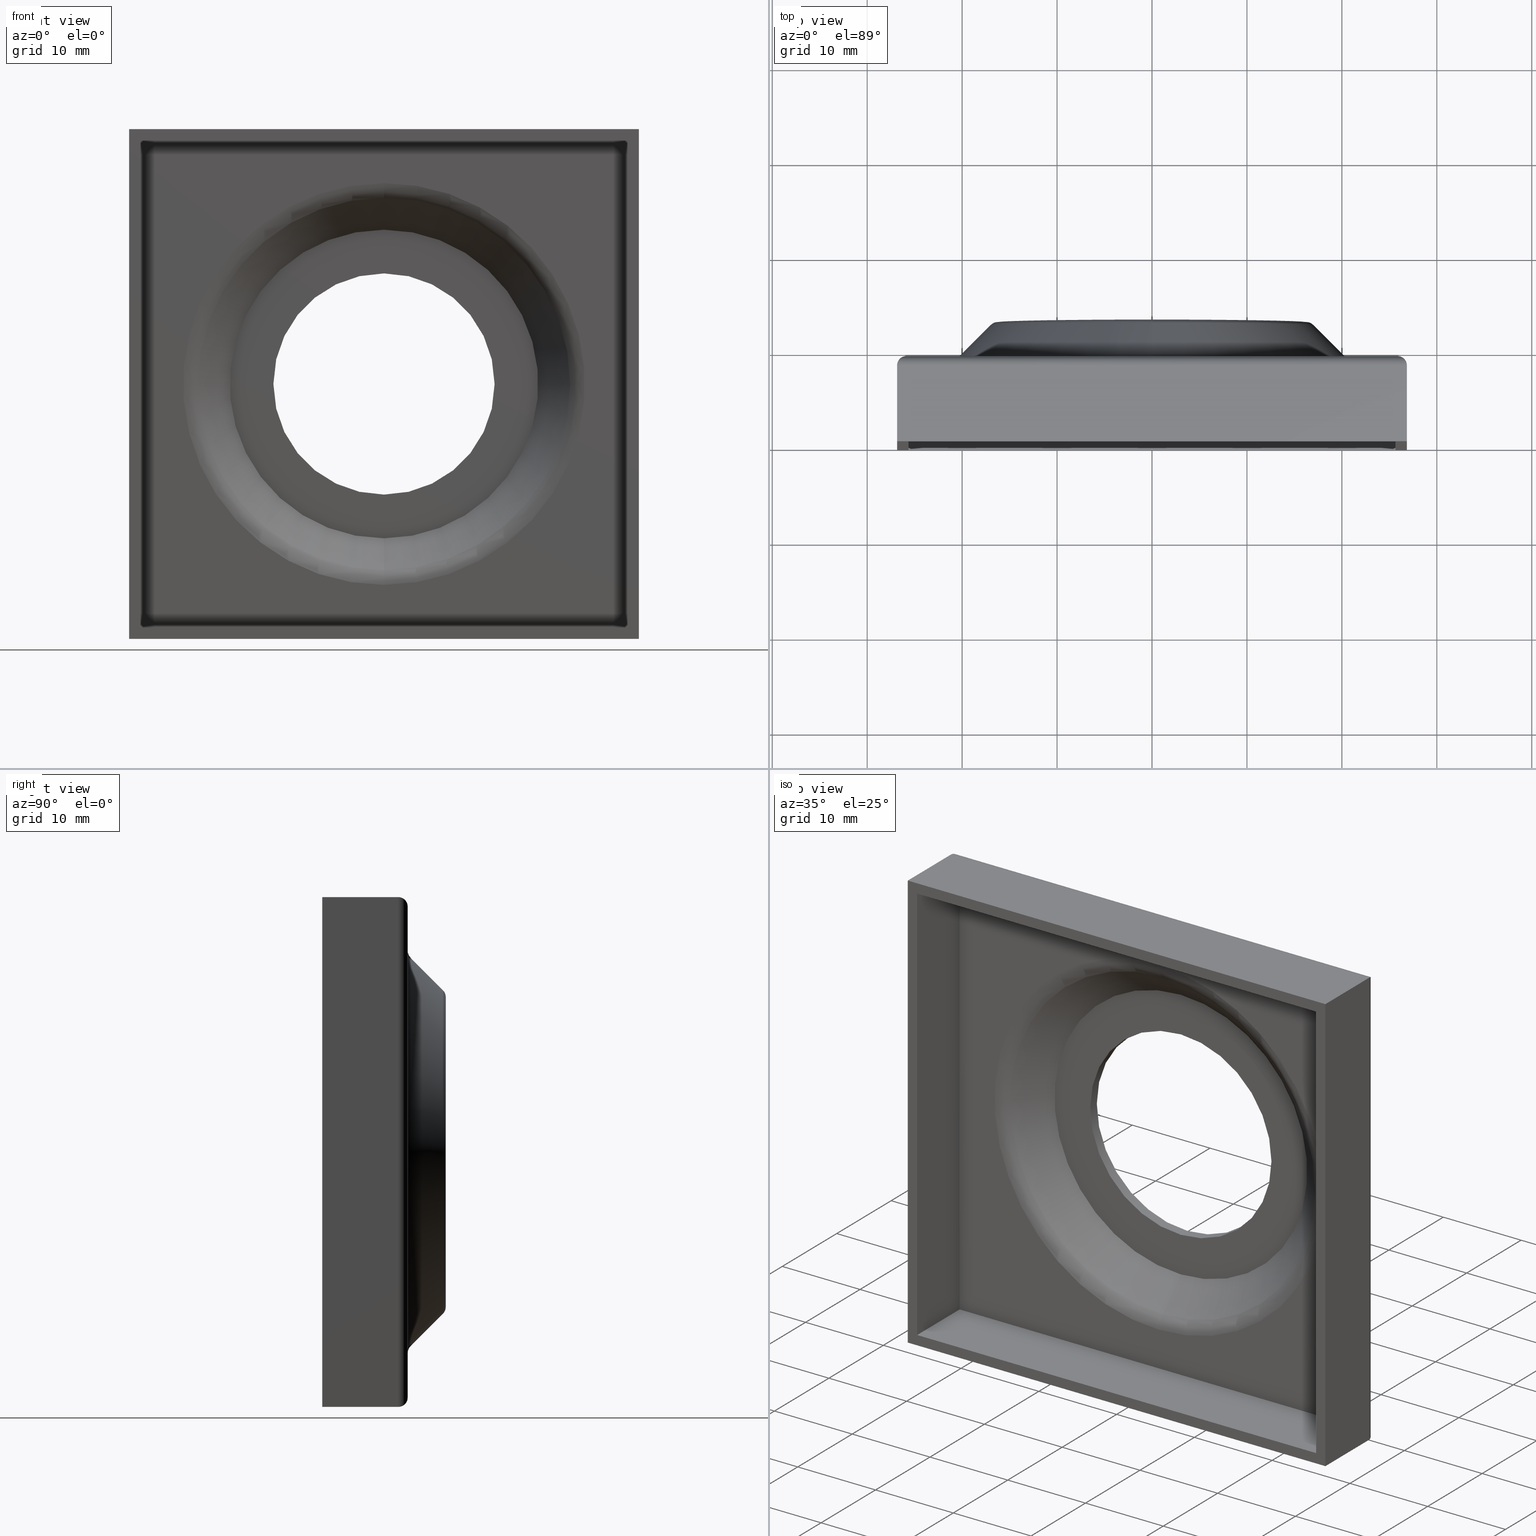
[diagram: canonical four-view strip — front | top / right | iso, engineering-drawing reading convention]
A machine part, canonical four-view strip (front | top / right | iso — engineering-drawing reading convention). The complete STEP part file that produces these views, byte-faithful:
ISO-10303-21;
HEADER;
FILE_DESCRIPTION (( 'STEP AP214' ),
    '1' );
FILE_NAME ('���. KRT111.STEP',
    '2014-05-26T18:04:52',
    ( '' ),
    ( '' ),
    'SwSTEP 2.0',
    'SolidWorks 2014',
    '' );
FILE_SCHEMA (( 'AUTOMOTIVE_DESIGN' ));
ENDSEC;

DATA;
#1 = CARTESIAN_POINT ( 'NONE',  ( 0.0000000000000000000, 0.0000000000000000000, 0.0000000000000000000 ) ) ;
#2 = CARTESIAN_POINT ( 'NONE',  ( 2.591868639563121200E-015, 9.999999999999998200, 21.16421356237309200 ) ) ;
#3 = ORIENTED_EDGE ( 'NONE', *, *, #544, .F. ) ;
#4 = CIRCLE ( 'NONE', #724, 16.33578643762689000 ) ;
#5 = VERTEX_POINT ( 'NONE', #638 ) ;
#6 = DIRECTION ( 'NONE',  ( -1.000000000000000000, 0.0000000000000000000, -0.0000000000000000000 ) ) ;
#7 = EDGE_CURVE ( 'NONE', #741, #245, #763, .T. ) ;
#8 = VECTOR ( 'NONE', #584, 1000.000000000000000 ) ;
#9 = DIRECTION ( 'NONE',  ( 0.0000000000000000000, 0.0000000000000000000, -1.000000000000000000 ) ) ;
#10 = DIRECTION ( 'NONE',  ( -0.0000000000000000000, 1.000000000000000000, -0.0000000000000000000 ) ) ;
#11 = CARTESIAN_POINT ( 'NONE',  ( 25.64999999999999900, 7.799999999999999800, 25.64999999999999900 ) ) ;
#12 = PRESENTATION_LAYER_ASSIGNMENT (  '', '', ( #324 ) ) ;
#13 = ORIENTED_EDGE ( 'NONE', *, *, #40, .F. ) ;
#14 = CARTESIAN_POINT ( 'NONE',  ( 0.0000000000000000000, 7.799999999999998900, 0.0000000000000000000 ) ) ;
#15 = ORIENTED_EDGE ( 'NONE', *, *, #58, .T. ) ;
#16 = DIRECTION ( 'NONE',  ( 0.0000000000000000000, 0.0000000000000000000, -1.000000000000000000 ) ) ;
#17 = EDGE_CURVE ( 'NONE', #715, #272, #4, .T. ) ;
#18 = CYLINDRICAL_SURFACE ( 'NONE', #553, 1.000000000000000900 ) ;
#19 = LINE ( 'NONE', #405, #180 ) ;
#20 = LINE ( 'NONE', #625, #188 ) ;
#21 = SURFACE_STYLE_USAGE ( .BOTH. , #409 ) ;
#22 = CARTESIAN_POINT ( 'NONE',  ( 0.0000000000000000000, 13.00000000000000000, 0.0000000000000000000 ) ) ;
#23 = CARTESIAN_POINT ( 'NONE',  ( 25.64999999999999900, 7.799999999999999800, -25.65000000000000600 ) ) ;
#24 = ORIENTED_EDGE ( 'NONE', *, *, #241, .F. ) ;
#25 = CIRCLE ( 'NONE', #149, 1.000000000000000900 ) ;
#26 = CARTESIAN_POINT ( 'NONE',  ( 0.0000000000000000000, 11.79999999999999900, 0.0000000000000000000 ) ) ;
#27 = VERTEX_POINT ( 'NONE', #610 ) ;
#28 = DIRECTION ( 'NONE',  ( -1.000000000000000000, -0.0000000000000000000, -0.0000000000000000000 ) ) ;
#29 = CARTESIAN_POINT ( 'NONE',  ( 0.0000000000000000000, 8.444365081389591400, 0.0000000000000000000 ) ) ;
#30 = AXIS2_PLACEMENT_3D ( 'NONE', #282, #721, #341 ) ;
#31 = EDGE_LOOP ( 'NONE', ( #214, #522, #743, #564 ) ) ;
#32 = DIRECTION ( 'NONE',  ( 0.0000000000000000000, 0.0000000000000000000, 1.000000000000000000 ) ) ;
#33 = CIRCLE ( 'NONE', #37, 2.200000000000000600 ) ;
#34 = LINE ( 'NONE', #171, #745 ) ;
#35 = CARTESIAN_POINT ( 'NONE',  ( -26.85000000000000500, 8.000000000000000000, 26.84999999999999800 ) ) ;
#36 = ADVANCED_FACE ( 'NONE', ( #204, #649 ), #302, .T. ) ;
#37 = AXIS2_PLACEMENT_3D ( 'NONE', #602, #600, #545 ) ;
#38 = APPLICATION_CONTEXT ( 'automotive_design' ) ;
#39 = ORIENTED_EDGE ( 'NONE', *, *, #317, .T. ) ;
#40 = EDGE_CURVE ( 'NONE', #351, #280, #647, .T. ) ;
#41 = DIRECTION ( 'NONE',  ( 0.0000000000000000000, 0.0000000000000000000, -1.000000000000000000 ) ) ;
#42 = VERTEX_POINT ( 'NONE', #105 ) ;
#43 = EDGE_CURVE ( 'NONE', #233, #648, #445, .T. ) ;
#44 = ORIENTED_EDGE ( 'NONE', *, *, #352, .T. ) ;
#45 = SURFACE_STYLE_FILL_AREA ( #491 ) ;
#46 = DIRECTION ( 'NONE',  ( 0.0000000000000000000, 0.0000000000000000000, 1.000000000000000000 ) ) ;
#47 = CIRCLE ( 'NONE', #731, 19.60857864376269400 ) ;
#48 = DIRECTION ( 'NONE',  ( 0.0000000000000000000, 0.0000000000000000000, 1.000000000000000000 ) ) ;
#49 = AXIS2_PLACEMENT_3D ( 'NONE', #323, #826, #771 ) ;
#50 = ADVANCED_FACE ( 'NONE', ( #222, #142 ), #362, .F. ) ;
#51 = EDGE_CURVE ( 'NONE', #716, #61, #541, .T. ) ;
#52 = CARTESIAN_POINT ( 'NONE',  ( 0.0000000000000000000, 0.0000000000000000000, 11.65000000000000000 ) ) ;
#53 = ORIENTED_EDGE ( 'NONE', *, *, #297, .T. ) ;
#54 = DIRECTION ( 'NONE',  ( -1.000000000000000000, 0.0000000000000000000, 0.0000000000000000000 ) ) ;
#55 = ADVANCED_FACE ( 'NONE', ( #586 ), #438, .T. ) ;
#56 = VECTOR ( 'NONE', #759, 1000.000000000000000 ) ;
#57 = CARTESIAN_POINT ( 'NONE',  ( 0.0000000000000000000, -0.0000000000000000000, -25.65000000000000600 ) ) ;
#58 = EDGE_CURVE ( 'NONE', #235, #5, #166, .T. ) ;
#59 = ORIENTED_EDGE ( 'NONE', *, *, #170, .T. ) ;
#60 = ORIENTED_EDGE ( 'NONE', *, *, #384, .F. ) ;
#61 = VERTEX_POINT ( 'NONE', #696 ) ;
#62 = AXIS2_PLACEMENT_3D ( 'NONE', #93, #415, #284 ) ;
#63 = FACE_OUTER_BOUND ( 'NONE', #443, .T. ) ;
#64 = DIRECTION ( 'NONE',  ( 1.000000000000000000, 0.0000000000000000000, -1.224646799147353200E-016 ) ) ;
#65 = CIRCLE ( 'NONE', #792, 21.16421356237309200 ) ;
#66 = EDGE_CURVE ( 'NONE', #5, #821, #404, .T. ) ;
#67 = CARTESIAN_POINT ( 'NONE',  ( -25.85000000000000500, 9.000000000000000000, -25.85000000000000500 ) ) ;
#68 = VERTEX_POINT ( 'NONE', #179 ) ;
#69 = CARTESIAN_POINT ( 'NONE',  ( 25.64999999999999900, 0.0000000000000000000, 0.0000000000000000000 ) ) ;
#70 = ORIENTED_EDGE ( 'NONE', *, *, #544, .T. ) ;
#71 = LINE ( 'NONE', #219, #567 ) ;
#72 = AXIS2_PLACEMENT_3D ( 'NONE', #226, #350, #799 ) ;
#73 = CARTESIAN_POINT ( 'NONE',  ( 0.0000000000000000000, 13.00000000000000000, 0.0000000000000000000 ) ) ;
#74 = ORIENTED_EDGE ( 'NONE', *, *, #580, .T. ) ;
#75 = AXIS2_PLACEMENT_3D ( 'NONE', #213, #347, #787 ) ;
#76 = ORIENTED_EDGE ( 'NONE', *, *, #430, .F. ) ;
#77 = ORIENTED_EDGE ( 'NONE', *, *, #655, .F. ) ;
#78 = VERTEX_POINT ( 'NONE', #566 ) ;
#79 = CARTESIAN_POINT ( 'NONE',  ( 25.84999999999999800, 9.000000000000000000, -25.85000000000000500 ) ) ;
#80 = EDGE_CURVE ( 'NONE', #373, #410, #128, .T. ) ;
#81 = EDGE_CURVE ( 'NONE', #716, #42, #757, .T. ) ;
#82 = FACE_OUTER_BOUND ( 'NONE', #122, .T. ) ;
#83 = DIRECTION ( 'NONE',  ( 0.0000000000000000000, 0.0000000000000000000, 1.000000000000000000 ) ) ;
#84 = EDGE_LOOP ( 'NONE', ( #695, #303, #162, #683 ) ) ;
#85 = CARTESIAN_POINT ( 'NONE',  ( 0.0000000000000000000, 0.0000000000000000000, 0.0000000000000000000 ) ) ;
#86 = ORIENTED_EDGE ( 'NONE', *, *, #779, .F. ) ;
#87 = CARTESIAN_POINT ( 'NONE',  ( 0.0000000000000000000, 9.000000000000000000, 0.0000000000000000000 ) ) ;
#88 = ADVANCED_BREP_SHAPE_REPRESENTATION ( '�. KRT111', ( #455, #754 ), #311 ) ;
#89 = CARTESIAN_POINT ( 'NONE',  ( 0.0000000000000000000, 7.799999999999998900, -21.16421356237309200 ) ) ;
#90 = EDGE_CURVE ( 'NONE', #229, #821, #537, .T. ) ;
#91 = MECHANICAL_DESIGN_GEOMETRIC_PRESENTATION_REPRESENTATION (  '', ( #589 ), #459 ) ;
#92 = CIRCLE ( 'NONE', #119, 11.65000000000000000 ) ;
#93 = CARTESIAN_POINT ( 'NONE',  ( -26.85000000000000500, 9.000000000000000000, 26.84999999999999800 ) ) ;
#94 = CARTESIAN_POINT ( 'NONE',  ( 25.64999999999999900, 7.799999999999999800, 26.84999999999999800 ) ) ;
#95 = CARTESIAN_POINT ( 'NONE',  ( 0.0000000000000000000, 9.999999999999998200, 0.0000000000000000000 ) ) ;
#96 = AXIS2_PLACEMENT_3D ( 'NONE', #612, #432, #46 ) ;
#97 = ORIENTED_EDGE ( 'NONE', *, *, #570, .F. ) ;
#98 = CARTESIAN_POINT ( 'NONE',  ( 26.84999999999999800, 8.000000000000000000, 26.84999999999999800 ) ) ;
#99 = EDGE_LOOP ( 'NONE', ( #97, #112, #273, #402 ) ) ;
#100 = CARTESIAN_POINT ( 'NONE',  ( -26.85000000000000500, 9.000000000000000000, 26.84999999999999800 ) ) ;
#101 = ORIENTED_EDGE ( 'NONE', *, *, #636, .F. ) ;
#102 = PRESENTATION_STYLE_ASSIGNMENT (( #806 ) ) ;
#103 = DIRECTION ( 'NONE',  ( -1.000000000000000000, 0.0000000000000000000, -0.0000000000000000000 ) ) ;
#104 = VECTOR ( 'NONE', #120, 1000.000000000000000 ) ;
#105 = CARTESIAN_POINT ( 'NONE',  ( -2.505273033939572200E-015, 9.292893218813450300, -20.45710678118655000 ) ) ;
#106 = AXIS2_PLACEMENT_3D ( 'NONE', #596, #659, #794 ) ;
#107 = PLANE ( 'NONE',  #406 ) ;
#108 = PRODUCT_DEFINITION_SHAPE ( 'NONE', 'NONE',  #321 ) ;
#109 = EDGE_CURVE ( 'NONE', #821, #648, #209, .T. ) ;
#110 = DIRECTION ( 'NONE',  ( 0.0000000000000000000, 0.0000000000000000000, -1.000000000000000000 ) ) ;
#111 = CARTESIAN_POINT ( 'NONE',  ( 0.0000000000000000000, 12.70710678118655100, 0.0000000000000000000 ) ) ;
#112 = ORIENTED_EDGE ( 'NONE', *, *, #786, .T. ) ;
#113 = ADVANCED_FACE ( 'NONE', ( #199, #137 ), #503, .F. ) ;
#114 = DIRECTION ( 'NONE',  ( -0.0000000000000000000, -1.000000000000000000, 0.0000000000000000000 ) ) ;
#115 = DIRECTION ( 'NONE',  ( -0.0000000000000000000, 1.000000000000000000, -0.0000000000000000000 ) ) ;
#116 = CYLINDRICAL_SURFACE ( 'NONE', #614, 1.000000000000000900 ) ;
#117 = FACE_OUTER_BOUND ( 'NONE', #594, .T. ) ;
#118 = VECTOR ( 'NONE', #157, 1000.000000000000000 ) ;
#119 = AXIS2_PLACEMENT_3D ( 'NONE', #653, #148, #338 ) ;
#120 = DIRECTION ( 'NONE',  ( -0.0000000000000000000, -1.000000000000000000, -0.0000000000000000000 ) ) ;
#121 = VERTEX_POINT ( 'NONE', #568 ) ;
#122 = EDGE_LOOP ( 'NONE', ( #13, #418, #146, #290 ) ) ;
#123 = AXIS2_PLACEMENT_3D ( 'NONE', #699, #28, #230 ) ;
#124 = EDGE_CURVE ( 'NONE', #482, #143, #428, .T. ) ;
#125 = ORIENTED_EDGE ( 'NONE', *, *, #430, .T. ) ;
#126 = CONICAL_SURFACE ( 'NONE', #220, 20.75000000000000000, 0.7853981633974500600 ) ;
#127 = CARTESIAN_POINT ( 'NONE',  ( -26.85000000000000500, 8.000000000000000000, -26.85000000000000500 ) ) ;
#128 = LINE ( 'NONE', #57, #154 ) ;
#129 = EDGE_CURVE ( 'NONE', #68, #824, #20, .T. ) ;
#130 = CARTESIAN_POINT ( 'NONE',  ( 2.000556857239451600E-015, 12.00000000000000000, -16.33578643762689000 ) ) ;
#131 = CARTESIAN_POINT ( 'NONE',  ( -26.43578643762691300, 9.000000000000000000, -26.43578643762691300 ) ) ;
#132 = ORIENTED_EDGE ( 'NONE', *, *, #655, .T. ) ;
#133 = AXIS2_PLACEMENT_3D ( 'NONE', #320, #760, #767 ) ;
#134 = CIRCLE ( 'NONE', #167, 11.65000000000000000 ) ;
#135 = VECTOR ( 'NONE', #442, 1000.000000000000000 ) ;
#136 = PRESENTATION_STYLE_ASSIGNMENT (( #21 ) ) ;
#137 = FACE_OUTER_BOUND ( 'NONE', #185, .T. ) ;
#138 = EDGE_CURVE ( 'NONE', #704, #482, #33, .T. ) ;
#139 = PRODUCT ( '���. KRT111', '���. KRT111', '', ( #287 ) ) ;
#140 = CARTESIAN_POINT ( 'NONE',  ( 26.84999999999999800, 0.0000000000000000000, 26.84999999999999800 ) ) ;
#141 = ORIENTED_EDGE ( 'NONE', *, *, #7, .T. ) ;
#142 = FACE_OUTER_BOUND ( 'NONE', #808, .T. ) ;
#143 = VERTEX_POINT ( 'NONE', #725 ) ;
#144 = ORIENTED_EDGE ( 'NONE', *, *, #58, .F. ) ;
#145 = EDGE_CURVE ( 'NONE', #444, #68, #812, .T. ) ;
#146 = ORIENTED_EDGE ( 'NONE', *, *, #90, .F. ) ;
#147 = CIRCLE ( 'NONE', #565, 16.25294372515227800 ) ;
#148 = DIRECTION ( 'NONE',  ( 0.0000000000000000000, 1.000000000000000000, 0.0000000000000000000 ) ) ;
#149 = AXIS2_PLACEMENT_3D ( 'NONE', #130, #577, #194 ) ;
#150 = FILL_AREA_STYLE_COLOUR ( '', #376 ) ;
#151 = ORIENTED_EDGE ( 'NONE', *, *, #241, .T. ) ;
#152 = CARTESIAN_POINT ( 'NONE',  ( -26.85000000000000500, 8.000000000000000000, 26.84999999999999800 ) ) ;
#153 = FACE_OUTER_BOUND ( 'NONE', #365, .T. ) ;
#154 = VECTOR ( 'NONE', #54, 1000.000000000000000 ) ;
#155 = VECTOR ( 'NONE', #114, 1000.000000000000000 ) ;
#156 = CARTESIAN_POINT ( 'NONE',  ( -26.85000000000000500, 7.799999999999999800, 25.64999999999999900 ) ) ;
#157 = DIRECTION ( 'NONE',  ( 0.0000000000000000000, 0.0000000000000000000, 1.000000000000000000 ) ) ;
#158 = ORIENTED_EDGE ( 'NONE', *, *, #779, .T. ) ;
#159 = CARTESIAN_POINT ( 'NONE',  ( -26.85000000000000500, 0.0000000000000000000, -26.85000000000000500 ) ) ;
#160 = AXIS2_PLACEMENT_3D ( 'NONE', #469, #783, #532 ) ;
#161 = EDGE_LOOP ( 'NONE', ( #132, #158, #24, #486 ) ) ;
#162 = ORIENTED_EDGE ( 'NONE', *, *, #742, .F. ) ;
#163 = DIRECTION ( 'NONE',  ( 0.0000000000000000000, 0.0000000000000000000, 1.000000000000000000 ) ) ;
#164 = CARTESIAN_POINT ( 'NONE',  ( 2.591868639563121200E-015, 7.799999999999998900, 21.16421356237309200 ) ) ;
#165 = COLOUR_RGB ( '',0.7529411764705882200, 0.7529411764705882200, 0.7529411764705882200 ) ;
#166 = LINE ( 'NONE', #396, #135 ) ;
#167 = AXIS2_PLACEMENT_3D ( 'NONE', #243, #424, #239 ) ;
#168 = CARTESIAN_POINT ( 'NONE',  ( 1.426713521006666200E-015, 13.00000000000000000, -11.65000000000000000 ) ) ;
#169 = CARTESIAN_POINT ( 'NONE',  ( 0.0000000000000000000, 13.00000000000000000, 0.0000000000000000000 ) ) ;
#170 = EDGE_CURVE ( 'NONE', #272, #715, #369, .T. ) ;
#171 = CARTESIAN_POINT ( 'NONE',  ( 25.64999999999999900, 9.000000000000000000, -25.65000000000000600 ) ) ;
#172 = EDGE_CURVE ( 'NONE', #235, #645, #654, .T. ) ;
#173 = DIRECTION ( 'NONE',  ( 0.0000000000000000000, -1.000000000000000000, 0.0000000000000000000 ) ) ;
#174 = DIRECTION ( 'NONE',  ( 0.0000000000000000000, 0.0000000000000000000, 1.000000000000000000 ) ) ;
#175 = ORIENTED_EDGE ( 'NONE', *, *, #260, .F. ) ;
#176 = CIRCLE ( 'NONE', #206, 2.200000000000000600 ) ;
#177 = SHAPE_DEFINITION_REPRESENTATION ( #108, #88 ) ;
#178 = ADVANCED_FACE ( 'NONE', ( #527 ), #800, .F. ) ;
#179 = CARTESIAN_POINT ( 'NONE',  ( 1.426713521006666200E-015, 11.79999999999999900, -11.65000000000000000 ) ) ;
#180 = VECTOR ( 'NONE', #343, 1000.000000000000000 ) ;
#181 = AXIS2_PLACEMENT_3D ( 'NONE', #201, #770, #386 ) ;
#182 = DIRECTION ( 'NONE',  ( 0.0000000000000000000, 0.0000000000000000000, 1.000000000000000000 ) ) ;
#183 = ADVANCED_FACE ( 'NONE', ( #656 ), #611, .T. ) ;
#184 = CARTESIAN_POINT ( 'NONE',  ( 0.0000000000000000000, 8.444365081389591400, 0.0000000000000000000 ) ) ;
#185 = EDGE_LOOP ( 'NONE', ( #291, #315 ) ) ;
#186 = EDGE_LOOP ( 'NONE', ( #256, #774, #495, #192 ) ) ;
#187 = CIRCLE ( 'NONE', #662, 1.000000000000000900 ) ;
#188 = VECTOR ( 'NONE', #115, 1000.000000000000000 ) ;
#189 = CARTESIAN_POINT ( 'NONE',  ( 25.64999999999999900, 9.000000000000000000, 25.64999999999999900 ) ) ;
#190 = LINE ( 'NONE', #476, #345 ) ;
#191 = CARTESIAN_POINT ( 'NONE',  ( 25.84999999999999800, 9.000000000000000000, 25.84999999999999800 ) ) ;
#192 = ORIENTED_EDGE ( 'NONE', *, *, #43, .T. ) ;
#193 = ORIENTED_EDGE ( 'NONE', *, *, #447, .F. ) ;
#194 = DIRECTION ( 'NONE',  ( 1.224646799147353500E-016, 0.0000000000000000000, -1.000000000000000000 ) ) ;
#195 = AXIS2_PLACEMENT_3D ( 'NONE', #1, #452, #392 ) ;
#196 = LINE ( 'NONE', #619, #500 ) ;
#197 = CARTESIAN_POINT ( 'NONE',  ( 26.43578643762690200, 9.000000000000000000, -26.43578643762691300 ) ) ;
#198 = LINE ( 'NONE', #94, #758 ) ;
#199 = FACE_BOUND ( 'NONE', #807, .T. ) ;
#200 = DIRECTION ( 'NONE',  ( 0.0000000000000000000, 0.0000000000000000000, 1.000000000000000000 ) ) ;
#201 = CARTESIAN_POINT ( 'NONE',  ( -26.85000000000000500, 9.000000000000000000, -25.65000000000000600 ) ) ;
#202 = ORIENTED_EDGE ( 'NONE', *, *, #261, .T. ) ;
#203 = ORIENTED_EDGE ( 'NONE', *, *, #447, .T. ) ;
#204 = FACE_BOUND ( 'NONE', #363, .T. ) ;
#205 = DIRECTION ( 'NONE',  ( 0.0000000000000000000, -1.000000000000000000, 0.0000000000000000000 ) ) ;
#206 = AXIS2_PLACEMENT_3D ( 'NONE', #634, #773, #833 ) ;
#207 = TOROIDAL_SURFACE ( 'NONE', #632, 21.16421356237309200, 2.199999999999999700 ) ;
#208 = LINE ( 'NONE', #35, #488 ) ;
#209 = LINE ( 'NONE', #372, #104 ) ;
#210 = DIRECTION ( 'NONE',  ( 1.000000000000000000, 0.0000000000000000000, -0.0000000000000000000 ) ) ;
#211 = EDGE_CURVE ( 'NONE', #410, #27, #630, .T. ) ;
#212 = EDGE_LOOP ( 'NONE', ( #76, #718 ) ) ;
#213 = CARTESIAN_POINT ( 'NONE',  ( 0.0000000000000000000, 8.151471862576141100, 0.0000000000000000000 ) ) ;
#214 = ORIENTED_EDGE ( 'NONE', *, *, #558, .T. ) ;
#215 = EDGE_CURVE ( 'NONE', #78, #781, #463, .T. ) ;
#216 = ORIENTED_EDGE ( 'NONE', *, *, #17, .T. ) ;
#217 = EDGE_CURVE ( 'NONE', #61, #246, #190, .T. ) ;
#218 = DIRECTION ( 'NONE',  ( -8.659560562354948900E-017, -0.7071067811865463500, -0.7071067811865487900 ) ) ;
#219 = CARTESIAN_POINT ( 'NONE',  ( -2.437227381482499200E-015, 8.151471862576141100, -19.90147186257614500 ) ) ;
#220 = AXIS2_PLACEMENT_3D ( 'NONE', #576, #777, #831 ) ;
#221 = ORIENTED_EDGE ( 'NONE', *, *, #317, .F. ) ;
#222 = FACE_BOUND ( 'NONE', #720, .T. ) ;
#223 = ORIENTED_EDGE ( 'NONE', *, *, #279, .T. ) ;
#224 = EDGE_CURVE ( 'NONE', #704, #472, #65, .T. ) ;
#225 = DIRECTION ( 'NONE',  ( -0.0000000000000000000, -1.000000000000000000, -0.0000000000000000000 ) ) ;
#226 = CARTESIAN_POINT ( 'NONE',  ( -26.85000000000000500, 9.000000000000000000, -26.85000000000000500 ) ) ;
#227 = FACE_OUTER_BOUND ( 'NONE', #801, .T. ) ;
#228 = DIRECTION ( 'NONE',  ( -0.0000000000000000000, -1.000000000000000000, -0.0000000000000000000 ) ) ;
#229 = VERTEX_POINT ( 'NONE', #191 ) ;
#230 = DIRECTION ( 'NONE',  ( 0.0000000000000000000, 0.0000000000000000000, 1.000000000000000000 ) ) ;
#231 = CARTESIAN_POINT ( 'NONE',  ( 0.0000000000000000000, 12.00000000000000000, 16.33578643762689000 ) ) ;
#232 = LINE ( 'NONE', #829, #571 ) ;
#233 = VERTEX_POINT ( 'NONE', #263 ) ;
#234 = DIRECTION ( 'NONE',  ( 0.0000000000000000000, 0.0000000000000000000, 1.000000000000000000 ) ) ;
#235 = VERTEX_POINT ( 'NONE', #127 ) ;
#236 = CARTESIAN_POINT ( 'NONE',  ( -25.85000000000000500, 9.000000000000000000, 0.0000000000000000000 ) ) ;
#237 = VECTOR ( 'NONE', #498, 1000.000000000000000 ) ;
#238 = DIRECTION ( 'NONE',  ( 1.000000000000000000, 0.0000000000000000000, 0.0000000000000000000 ) ) ;
#239 = DIRECTION ( 'NONE',  ( 0.0000000000000000000, 0.0000000000000000000, 1.000000000000000000 ) ) ;
#240 = CARTESIAN_POINT ( 'NONE',  ( -26.85000000000000500, 8.585786437626904200, 26.84999999999999800 ) ) ;
#241 = EDGE_CURVE ( 'NONE', #121, #626, #480, .T. ) ;
#242 = AXIS2_PLACEMENT_3D ( 'NONE', #111, #370, #769 ) ;
#243 = CARTESIAN_POINT ( 'NONE',  ( 0.0000000000000000000, 13.00000000000000000, 0.0000000000000000000 ) ) ;
#244 = CARTESIAN_POINT ( 'NONE',  ( 26.84999999999999800, 8.000000000000000000, 26.84999999999999800 ) ) ;
#245 = VERTEX_POINT ( 'NONE', #257 ) ;
#246 = VERTEX_POINT ( 'NONE', #830 ) ;
#247 = UNCERTAINTY_MEASURE_WITH_UNIT (LENGTH_MEASURE( 1.000000000000000100E-005 ), #604, 'distance_accuracy_value', 'NONE');
#248 = ORIENTED_EDGE ( 'NONE', *, *, #509, .F. ) ;
#249 = ADVANCED_FACE ( 'NONE', ( #789 ), #631, .T. ) ;
#250 = CARTESIAN_POINT ( 'NONE',  ( 25.84999999999999800, 9.000000000000000000, 25.84999999999999800 ) ) ;
#251 = ORIENTED_EDGE ( 'NONE', *, *, #784, .F. ) ;
#252 = LINE ( 'NONE', #52, #732 ) ;
#253 = DIRECTION ( 'NONE',  ( 0.0000000000000000000, -0.0000000000000000000, 1.000000000000000000 ) ) ;
#254 = VECTOR ( 'NONE', #736, 1000.000000000000000 ) ;
#255 = ADVANCED_FACE ( 'NONE', ( #377 ), #513, .T. ) ;
#256 = ORIENTED_EDGE ( 'NONE', *, *, #109, .F. ) ;
#257 = CARTESIAN_POINT ( 'NONE',  ( 0.0000000000000000000, 11.79999999999999900, 16.25294372515227800 ) ) ;
#258 = ORIENTED_EDGE ( 'NONE', *, *, #618, .T. ) ;
#259 = EDGE_LOOP ( 'NONE', ( #640, #434, #832, #77 ) ) ;
#260 = EDGE_CURVE ( 'NONE', #716, #715, #25, .T. ) ;
#261 = EDGE_CURVE ( 'NONE', #246, #42, #620, .T. ) ;
#262 = DIRECTION ( 'NONE',  ( -1.000000000000000000, 0.0000000000000000000, 0.0000000000000000000 ) ) ;
#263 = CARTESIAN_POINT ( 'NONE',  ( -26.85000000000000500, 0.0000000000000000000, 26.84999999999999800 ) ) ;
#264 = DIRECTION ( 'NONE',  ( 0.0000000000000000000, 0.0000000000000000000, -1.000000000000000000 ) ) ;
#265 = ORIENTED_EDGE ( 'NONE', *, *, #40, .T. ) ;
#266 = AXIS2_PLACEMENT_3D ( 'NONE', #22, #281, #163 ) ;
#267 = DIRECTION ( 'NONE',  ( -1.000000000000000000, -0.0000000000000000000, -0.0000000000000000000 ) ) ;
#268 = FACE_OUTER_BOUND ( 'NONE', #422, .T. ) ;
#269 = ORIENTED_EDGE ( 'NONE', *, *, #51, .F. ) ;
#270 = EDGE_CURVE ( 'NONE', #472, #704, #504, .T. ) ;
#271 = LINE ( 'NONE', #189, #819 ) ;
#272 = VERTEX_POINT ( 'NONE', #383 ) ;
#273 = ORIENTED_EDGE ( 'NONE', *, *, #172, .T. ) ;
#274 = CARTESIAN_POINT ( 'NONE',  ( -2.296212748401286400E-015, 12.70710678118655100, -17.04289321881344000 ) ) ;
#275 = VECTOR ( 'NONE', #686, 1000.000000000000000 ) ;
#276 = CARTESIAN_POINT ( 'NONE',  ( 0.0000000000000000000, 9.000000000000000000, 0.0000000000000000000 ) ) ;
#277 = AXIS2_PLACEMENT_3D ( 'NONE', #95, #481, #672 ) ;
#278 = PLANE ( 'NONE',  #160 ) ;
#279 = EDGE_CURVE ( 'NONE', #790, #549, #271, .T. ) ;
#280 = VERTEX_POINT ( 'NONE', #449 ) ;
#281 = DIRECTION ( 'NONE',  ( 0.0000000000000000000, 1.000000000000000000, 0.0000000000000000000 ) ) ;
#282 = CARTESIAN_POINT ( 'NONE',  ( 0.0000000000000000000, 12.70710678118655100, 0.0000000000000000000 ) ) ;
#283 = FACE_OUTER_BOUND ( 'NONE', #508, .T. ) ;
#284 = DIRECTION ( 'NONE',  ( 0.0000000000000000000, 0.0000000000000000000, -1.000000000000000000 ) ) ;
#285 = FILL_AREA_STYLE ('',( #150 ) ) ;
#286 = DIRECTION ( 'NONE',  ( 0.0000000000000000000, 1.000000000000000000, 0.0000000000000000000 ) ) ;
#287 = PRODUCT_CONTEXT ( 'NONE', #38, 'mechanical' ) ;
#288 = CARTESIAN_POINT ( 'NONE',  ( 26.84999999999999800, 0.0000000000000000000, 26.84999999999999800 ) ) ;
#289 = ORIENTED_EDGE ( 'NONE', *, *, #81, .T. ) ;
#290 = ORIENTED_EDGE ( 'NONE', *, *, #713, .F. ) ;
#291 = ORIENTED_EDGE ( 'NONE', *, *, #558, .F. ) ;
#292 = ADVANCED_FACE ( 'NONE', ( #390 ), #552, .F. ) ;
#293 = AXIS2_PLACEMENT_3D ( 'NONE', #635, #765, #378 ) ;
#294 = FACE_BOUND ( 'NONE', #212, .T. ) ;
#295 = DIRECTION ( 'NONE',  ( 0.0000000000000000000, 1.000000000000000000, 0.0000000000000000000 ) ) ;
#296 = ADVANCED_FACE ( 'NONE', ( #400 ), #126, .T. ) ;
#297 = EDGE_CURVE ( 'NONE', #669, #5, #803, .T. ) ;
#298 = CARTESIAN_POINT ( 'NONE',  ( 0.0000000000000000000, 11.79999999999999900, 0.0000000000000000000 ) ) ;
#299 = EDGE_CURVE ( 'NONE', #761, #645, #232, .T. ) ;
#300 = CARTESIAN_POINT ( 'NONE',  ( -2.401358307191313500E-015, 8.444365081389591400, -19.60857864376269400 ) ) ;
#301 = ORIENTED_EDGE ( 'NONE', *, *, #713, .T. ) ;
#302 = PLANE ( 'NONE',  #795 ) ;
#303 = ORIENTED_EDGE ( 'NONE', *, *, #43, .F. ) ;
#304 = DIRECTION ( 'NONE',  ( 0.0000000000000000000, 0.0000000000000000000, 1.000000000000000000 ) ) ;
#305 = DIRECTION ( 'NONE',  ( -0.0000000000000000000, -0.0000000000000000000, 1.000000000000000000 ) ) ;
#306 = VECTOR ( 'NONE', #205, 1000.000000000000000 ) ;
#307 = AXIS2_PLACEMENT_3D ( 'NONE', #26, #734, #32 ) ;
#308 = CIRCLE ( 'NONE', #578, 20.45710678118655000 ) ;
#309 = CARTESIAN_POINT ( 'NONE',  ( 0.0000000000000000000, 9.292893218813450300, 0.0000000000000000000 ) ) ;
#310 = DIRECTION ( 'NONE',  ( 0.0000000000000000000, 1.000000000000000000, 0.0000000000000000000 ) ) ;
#311 =( GEOMETRIC_REPRESENTATION_CONTEXT ( 3 ) GLOBAL_UNCERTAINTY_ASSIGNED_CONTEXT ( ( #511 ) ) GLOBAL_UNIT_ASSIGNED_CONTEXT ( ( #548, #673, #356 ) ) REPRESENTATION_CONTEXT ( 'NONE', 'WORKASPACE' ) );
#312 = ADVANCED_FACE ( 'NONE', ( #717 ), #355, .F. ) ;
#313 = CARTESIAN_POINT ( 'NONE',  ( 26.84999999999999800, 8.585786437626904200, 26.84999999999999800 ) ) ;
#314 = ORIENTED_EDGE ( 'NONE', *, *, #129, .F. ) ;
#315 = ORIENTED_EDGE ( 'NONE', *, *, #7, .F. ) ;
#316 = ORIENTED_EDGE ( 'NONE', *, *, #90, .T. ) ;
#317 = EDGE_CURVE ( 'NONE', #78, #246, #187, .T. ) ;
#318 = EDGE_CURVE ( 'NONE', #648, #761, #675, .T. ) ;
#319 = LINE ( 'NONE', #427, #237 ) ;
#320 = CARTESIAN_POINT ( 'NONE',  ( 0.0000000000000000000, 9.292893218813450300, 0.0000000000000000000 ) ) ;
#321 = PRODUCT_DEFINITION ( 'UNKNOWN', '', #538, #470 ) ;
#322 = PLANE ( 'NONE',  #181 ) ;
#323 = CARTESIAN_POINT ( 'NONE',  ( -25.65000000000000600, 9.000000000000000000, 26.84999999999999800 ) ) ;
#324 = STYLED_ITEM ( 'NONE', ( #102 ), #455 ) ;
#325 = ORIENTED_EDGE ( 'NONE', *, *, #593, .T. ) ;
#326 = VERTEX_POINT ( 'NONE', #462 ) ;
#327 = ORIENTED_EDGE ( 'NONE', *, *, #671, .F. ) ;
#328 = LINE ( 'NONE', #152, #440 ) ;
#329 = CARTESIAN_POINT ( 'NONE',  ( 26.84999999999999800, 8.585786437626904200, -26.85000000000000500 ) ) ;
#330 = CARTESIAN_POINT ( 'NONE',  ( 26.84999999999999800, 8.000000000000000000, -26.85000000000000500 ) ) ;
#331 = ORIENTED_EDGE ( 'NONE', *, *, #145, .T. ) ;
#332 = PLANE ( 'NONE',  #436 ) ;
#333 = ORIENTED_EDGE ( 'NONE', *, *, #129, .T. ) ;
#334 = ORIENTED_EDGE ( 'NONE', *, *, #145, .F. ) ;
#335 = LINE ( 'NONE', #775, #698 ) ;
#336 = DIRECTION ( 'NONE',  ( -1.000000000000000000, 0.0000000000000000000, 0.0000000000000000000 ) ) ;
#337 = AXIS2_PLACEMENT_3D ( 'NONE', #797, #225, #617 ) ;
#338 = DIRECTION ( 'NONE',  ( 0.0000000000000000000, 0.0000000000000000000, 1.000000000000000000 ) ) ;
#339 = EDGE_CURVE ( 'NONE', #626, #27, #609, .T. ) ;
#340 = ORIENTED_EDGE ( 'NONE', *, *, #80, .F. ) ;
#341 = DIRECTION ( 'NONE',  ( 0.0000000000000000000, 0.0000000000000000000, -1.000000000000000000 ) ) ;
#342 = VECTOR ( 'NONE', #714, 1000.000000000000000 ) ;
#343 = DIRECTION ( 'NONE',  ( -0.0000000000000000000, -0.0000000000000000000, 1.000000000000000000 ) ) ;
#344 = CIRCLE ( 'NONE', #123, 1.000000000000000900 ) ;
#345 = VECTOR ( 'NONE', #348, 1000.000000000000000 ) ;
#346 =( NAMED_UNIT ( * ) PLANE_ANGLE_UNIT ( ) SI_UNIT ( $, .RADIAN. ) );
#347 = DIRECTION ( 'NONE',  ( -0.0000000000000000000, -1.000000000000000000, -0.0000000000000000000 ) ) ;
#348 = DIRECTION ( 'NONE',  ( 0.0000000000000000000, -0.7071067811865463500, 0.7071067811865487900 ) ) ;
#349 = DIRECTION ( 'NONE',  ( 0.0000000000000000000, 0.0000000000000000000, 1.000000000000000000 ) ) ;
#350 = DIRECTION ( 'NONE',  ( 0.0000000000000000000, 0.0000000000000000000, 1.000000000000000000 ) ) ;
#351 = VERTEX_POINT ( 'NONE', #646 ) ;
#352 = EDGE_CURVE ( 'NONE', #472, #143, #176, .T. ) ;
#353 = ORIENTED_EDGE ( 'NONE', *, *, #138, .T. ) ;
#354 = DIRECTION ( 'NONE',  ( 0.0000000000000000000, 0.0000000000000000000, 1.000000000000000000 ) ) ;
#355 = CYLINDRICAL_SURFACE ( 'NONE', #195, 11.65000000000000000 ) ;
#356 =( NAMED_UNIT ( * ) SI_UNIT ( $, .STERADIAN. ) SOLID_ANGLE_UNIT ( ) );
#357 = EDGE_CURVE ( 'NONE', #549, #373, #811, .T. ) ;
#358 = CARTESIAN_POINT ( 'NONE',  ( 25.84999999999999800, 8.000000000000000000, 0.0000000000000000000 ) ) ;
#359 = EDGE_CURVE ( 'NONE', #669, #326, #335, .T. ) ;
#360 = PLANE ( 'NONE',  #598 ) ;
#361 = ADVANCED_FACE ( 'NONE', ( #63 ), #322, .T. ) ;
#362 = PLANE ( 'NONE',  #458 ) ;
#363 = EDGE_LOOP ( 'NONE', ( #668, #587 ) ) ;
#364 = DIRECTION ( 'NONE',  ( 0.0000000000000000000, 1.000000000000000000, 0.0000000000000000000 ) ) ;
#365 = EDGE_LOOP ( 'NONE', ( #59, #216 ) ) ;
#366 = MECHANICAL_DESIGN_GEOMETRIC_PRESENTATION_REPRESENTATION (  '', ( #324 ), #644 ) ;
#367 = CARTESIAN_POINT ( 'NONE',  ( 0.0000000000000000000, 9.999999999999998200, 0.0000000000000000000 ) ) ;
#368 = CIRCLE ( 'NONE', #30, 17.04289321881344000 ) ;
#369 = CIRCLE ( 'NONE', #266, 16.33578643762689000 ) ;
#370 = DIRECTION ( 'NONE',  ( -0.0000000000000000000, -1.000000000000000000, -0.0000000000000000000 ) ) ;
#371 = EDGE_CURVE ( 'NONE', #235, #326, #388, .T. ) ;
#372 = CARTESIAN_POINT ( 'NONE',  ( 26.84999999999999800, 9.000000000000000000, 26.84999999999999800 ) ) ;
#373 = VERTEX_POINT ( 'NONE', #710 ) ;
#374 = ORIENTED_EDGE ( 'NONE', *, *, #796, .T. ) ;
#375 = ADVANCED_FACE ( 'NONE', ( #592 ), #687, .T. ) ;
#376 = COLOUR_RGB ( '',0.7529411764705882200, 0.7529411764705882200, 0.7529411764705882200 ) ;
#377 = FACE_OUTER_BOUND ( 'NONE', #494, .T. ) ;
#378 = DIRECTION ( 'NONE',  ( 0.0000000000000000000, 0.0000000000000000000, -1.000000000000000000 ) ) ;
#379 = EDGE_LOOP ( 'NONE', ( #175, #101, #616, #711 ) ) ;
#380 = AXIS2_PLACEMENT_3D ( 'NONE', #87, #413, #728 ) ;
#381 = ORIENTED_EDGE ( 'NONE', *, *, #66, .F. ) ;
#382 = EDGE_LOOP ( 'NONE', ( #223, #3, #499, #86 ) ) ;
#383 = CARTESIAN_POINT ( 'NONE',  ( 0.0000000000000000000, 13.00000000000000000, 16.33578643762689000 ) ) ;
#384 = EDGE_CURVE ( 'NONE', #229, #669, #526, .T. ) ;
#385 = CYLINDRICAL_SURFACE ( 'NONE', #749, 1.000000000000000900 ) ;
#386 = DIRECTION ( 'NONE',  ( 1.000000000000000000, 0.0000000000000000000, -0.0000000000000000000 ) ) ;
#387 = CARTESIAN_POINT ( 'NONE',  ( -26.85000000000000500, 7.799999999999999800, -25.65000000000000600 ) ) ;
#388 =( BOUNDED_CURVE ( )  B_SPLINE_CURVE ( 3, ( #709, #641, #131, #67 ),
 .UNSPECIFIED., .F., .F. ) 
 B_SPLINE_CURVE_WITH_KNOTS ( ( 4, 4 ),
 ( 3.141592653589793100, 4.712388980384689700 ),
 .UNSPECIFIED. ) 
 CURVE ( )  GEOMETRIC_REPRESENTATION_ITEM ( )  RATIONAL_B_SPLINE_CURVE ( ( 1.000000000000000000, 0.8047378541243649400, 0.8047378541243649400, 1.000000000000000000 ) ) 
 REPRESENTATION_ITEM ( '' )  );
#389 = AXIS2_PLACEMENT_3D ( 'NONE', #451, #828, #702 ) ;
#390 = FACE_OUTER_BOUND ( 'NONE', #391, .T. ) ;
#391 = EDGE_LOOP ( 'NONE', ( #446, #141, #727, #682 ) ) ;
#392 = DIRECTION ( 'NONE',  ( 0.0000000000000000000, 0.0000000000000000000, 1.000000000000000000 ) ) ;
#393 = LINE ( 'NONE', #156, #733 ) ;
#394 = LINE ( 'NONE', #591, #776 ) ;
#395 = CARTESIAN_POINT ( 'NONE',  ( -26.85000000000000500, 9.000000000000000000, 25.64999999999999900 ) ) ;
#396 = CARTESIAN_POINT ( 'NONE',  ( -26.85000000000000500, 8.000000000000000000, -26.85000000000000500 ) ) ;
#397 = CARTESIAN_POINT ( 'NONE',  ( -25.65000000000000600, 0.0000000000000000000, -25.65000000000000600 ) ) ;
#398 = ORIENTED_EDGE ( 'NONE', *, *, #359, .F. ) ;
#399 = EDGE_CURVE ( 'NONE', #121, #726, #474, .T. ) ;
#400 = FACE_OUTER_BOUND ( 'NONE', #573, .T. ) ;
#401 = ORIENTED_EDGE ( 'NONE', *, *, #66, .T. ) ;
#402 = ORIENTED_EDGE ( 'NONE', *, *, #742, .T. ) ;
#403 = FACE_OUTER_BOUND ( 'NONE', #465, .T. ) ;
#404 = LINE ( 'NONE', #244, #489 ) ;
#405 = CARTESIAN_POINT ( 'NONE',  ( -26.85000000000000500, 0.0000000000000000000, 26.84999999999999800 ) ) ;
#406 = AXIS2_PLACEMENT_3D ( 'NONE', #100, #41, #103 ) ;
#407 = PRESENTATION_LAYER_ASSIGNMENT (  '', '', ( #589 ) ) ;
#408 = CARTESIAN_POINT ( 'NONE',  ( -25.65000000000000600, -0.0000000000000000000, 0.0000000000000000000 ) ) ;
#409 = SURFACE_SIDE_STYLE ('',( #583 ) ) ;
#410 = VERTEX_POINT ( 'NONE', #397 ) ;
#411 = DIRECTION ( 'NONE',  ( 0.0000000000000000000, 0.0000000000000000000, -1.000000000000000000 ) ) ;
#412 = LINE ( 'NONE', #608, #254 ) ;
#413 = DIRECTION ( 'NONE',  ( 0.0000000000000000000, -1.000000000000000000, 0.0000000000000000000 ) ) ;
#414 = FACE_OUTER_BOUND ( 'NONE', #31, .T. ) ;
#415 = DIRECTION ( 'NONE',  ( 1.000000000000000000, -0.0000000000000000000, 0.0000000000000000000 ) ) ;
#416 = DIRECTION ( 'NONE',  ( 0.0000000000000000000, 0.0000000000000000000, 1.000000000000000000 ) ) ;
#417 = DIRECTION ( 'NONE',  ( -1.000000000000000000, -0.0000000000000000000, -0.0000000000000000000 ) ) ;
#418 = ORIENTED_EDGE ( 'NONE', *, *, #520, .F. ) ;
#419 = DIRECTION ( 'NONE',  ( 0.0000000000000000000, 1.000000000000000000, 0.0000000000000000000 ) ) ;
#420 = CARTESIAN_POINT ( 'NONE',  ( 0.0000000000000000000, 8.000000000000000000, 25.84999999999999800 ) ) ;
#421 = ORIENTED_EDGE ( 'NONE', *, *, #138, .F. ) ;
#422 = EDGE_LOOP ( 'NONE', ( #269, #603, #510, #248 ) ) ;
#423 = ADVANCED_FACE ( 'NONE', ( #559 ), #780, .T. ) ;
#424 = DIRECTION ( 'NONE',  ( 0.0000000000000000000, 1.000000000000000000, 0.0000000000000000000 ) ) ;
#425 = DIRECTION ( 'NONE',  ( 0.0000000000000000000, -1.000000000000000000, 0.0000000000000000000 ) ) ;
#426 = EDGE_CURVE ( 'NONE', #245, #143, #785, .T. ) ;
#427 = CARTESIAN_POINT ( 'NONE',  ( 0.0000000000000000000, -0.0000000000000000000, 25.64999999999999900 ) ) ;
#428 = CIRCLE ( 'NONE', #834, 19.60857864376269400 ) ;
#429 = ADVANCED_FACE ( 'NONE', ( #294, #153 ), #332, .T. ) ;
#430 = EDGE_CURVE ( 'NONE', #660, #824, #134, .T. ) ;
#431 = DIRECTION ( 'NONE',  ( 1.000000000000000000, 0.0000000000000000000, 0.0000000000000000000 ) ) ;
#432 = DIRECTION ( 'NONE',  ( -0.0000000000000000000, -1.000000000000000000, -0.0000000000000000000 ) ) ;
#433 = ADVANCED_FACE ( 'NONE', ( #82 ), #629, .T. ) ;
#434 = ORIENTED_EDGE ( 'NONE', *, *, #357, .F. ) ;
#435 = ORIENTED_EDGE ( 'NONE', *, *, #124, .T. ) ;
#436 = AXIS2_PLACEMENT_3D ( 'NONE', #73, #525, #651 ) ;
#437 = ADVANCED_FACE ( 'NONE', ( #450 ), #793, .F. ) ;
#438 = CONICAL_SURFACE ( 'NONE', #96, 20.75000000000000000, 0.7853981633974500600 ) ;
#439 = CARTESIAN_POINT ( 'NONE',  ( -2.541142108230757900E-015, 9.000000000000000000, -20.75000000000000000 ) ) ;
#440 = VECTOR ( 'NONE', #657, 1000.000000000000000 ) ;
#441 = PRODUCT_RELATED_PRODUCT_CATEGORY ( 'part', '', ( #139 ) ) ;
#442 = DIRECTION ( 'NONE',  ( 1.000000000000000000, -0.0000000000000000000, -0.0000000000000000000 ) ) ;
#443 = EDGE_LOOP ( 'NONE', ( #74, #340, #815, #703 ) ) ;
#444 = VERTEX_POINT ( 'NONE', #615 ) ;
#445 = LINE ( 'NONE', #688, #701 ) ;
#446 = ORIENTED_EDGE ( 'NONE', *, *, #719, .F. ) ;
#447 = EDGE_CURVE ( 'NONE', #326, #280, #518, .T. ) ;
#448 = ORIENTED_EDGE ( 'NONE', *, *, #593, .F. ) ;
#449 = CARTESIAN_POINT ( 'NONE',  ( -25.85000000000000500, 9.000000000000000000, 25.84999999999999800 ) ) ;
#450 = FACE_OUTER_BOUND ( 'NONE', #581, .T. ) ;
#451 = CARTESIAN_POINT ( 'NONE',  ( 25.64999999999999900, 9.000000000000000000, 26.84999999999999800 ) ) ;
#452 = DIRECTION ( 'NONE',  ( -0.0000000000000000000, 1.000000000000000000, -0.0000000000000000000 ) ) ;
#453 = AXIS2_PLACEMENT_3D ( 'NONE', #395, #9, #6 ) ;
#454 = ORIENTED_EDGE ( 'NONE', *, *, #804, .T. ) ;
#455 = MANIFOLD_SOLID_BREP ( '�����-��������1', #457 ) ;
#456 = CARTESIAN_POINT ( 'NONE',  ( 25.84999999999999800, 9.000000000000000000, 0.0000000000000000000 ) ) ;
#457 = CLOSED_SHELL ( 'NONE', ( #312, #183, #693, #437, #822, #55, #691, #50, #563, #621, #178, #556, #296, #429, #375, #755, #433, #547, #605, #505, #36, #249, #361, #255, #423, #292, #113, #678, #684 ) ) ;
#458 = AXIS2_PLACEMENT_3D ( 'NONE', #501, #173, #816 ) ;
#459 =( GEOMETRIC_REPRESENTATION_CONTEXT ( 3 ) GLOBAL_UNCERTAINTY_ASSIGNED_CONTEXT ( ( #479 ) ) GLOBAL_UNIT_ASSIGNED_CONTEXT ( ( #729, #346, #477 ) ) REPRESENTATION_CONTEXT ( 'NONE', 'WORKASPACE' ) );
#460 = FACE_BOUND ( 'NONE', #555, .T. ) ;
#461 = DIRECTION ( 'NONE',  ( 0.0000000000000000000, 1.000000000000000000, 0.0000000000000000000 ) ) ;
#462 = CARTESIAN_POINT ( 'NONE',  ( -25.85000000000000500, 9.000000000000000000, -25.85000000000000500 ) ) ;
#463 = CIRCLE ( 'NONE', #380, 21.16421356237309200 ) ;
#464 = ORIENTED_EDGE ( 'NONE', *, *, #359, .T. ) ;
#465 = EDGE_LOOP ( 'NONE', ( #606, #401, #516, #650 ) ) ;
#466 = CARTESIAN_POINT ( 'NONE',  ( 0.0000000000000000000, 8.151471862576141100, 19.90147186257614500 ) ) ;
#467 = ORIENTED_EDGE ( 'NONE', *, *, #215, .F. ) ;
#468 = ORIENTED_EDGE ( 'NONE', *, *, #217, .T. ) ;
#469 = CARTESIAN_POINT ( 'NONE',  ( 0.0000000000000000000, 0.0000000000000000000, 0.0000000000000000000 ) ) ;
#470 = PRODUCT_DEFINITION_CONTEXT ( 'detailed design', #539, 'design' ) ;
#471 = CARTESIAN_POINT ( 'NONE',  ( 26.84999999999999800, 0.0000000000000000000, -26.85000000000000500 ) ) ;
#472 = VERTEX_POINT ( 'NONE', #164 ) ;
#473 = DIRECTION ( 'NONE',  ( 0.0000000000000000000, 0.0000000000000000000, 1.000000000000000000 ) ) ;
#474 = LINE ( 'NONE', #387, #722 ) ;
#475 = TOROIDAL_SURFACE ( 'NONE', #550, 16.33578643762689000, 1.000000000000000000 ) ;
#476 = CARTESIAN_POINT ( 'NONE',  ( 0.0000000000000000000, 9.000000000000000000, 20.75000000000000000 ) ) ;
#477 =( NAMED_UNIT ( * ) SI_UNIT ( $, .STERADIAN. ) SOLID_ANGLE_UNIT ( ) );
#478 = AXIS2_PLACEMENT_3D ( 'NONE', #367, #746, #677 ) ;
#479 = UNCERTAINTY_MEASURE_WITH_UNIT (LENGTH_MEASURE( 1.000000000000000100E-005 ), #729, 'distance_accuracy_value', 'NONE');
#480 = LINE ( 'NONE', #628, #633 ) ;
#481 = DIRECTION ( 'NONE',  ( 0.0000000000000000000, -1.000000000000000000, 0.0000000000000000000 ) ) ;
#482 = VERTEX_POINT ( 'NONE', #300 ) ;
#483 = CARTESIAN_POINT ( 'NONE',  ( 0.0000000000000000000, 0.0000000000000000000, 0.0000000000000000000 ) ) ;
#484 = EDGE_LOOP ( 'NONE', ( #314, #334, #523, #125 ) ) ;
#485 = SURFACE_SIDE_STYLE ('',( #45 ) ) ;
#486 = ORIENTED_EDGE ( 'NONE', *, *, #399, .T. ) ;
#487 = DIRECTION ( 'NONE',  ( 0.0000000000000000000, 0.0000000000000000000, 1.000000000000000000 ) ) ;
#488 = VECTOR ( 'NONE', #417, 1000.000000000000000 ) ;
#489 = VECTOR ( 'NONE', #305, 1000.000000000000000 ) ;
#490 = CARTESIAN_POINT ( 'NONE',  ( 0.0000000000000000000, 11.79999999999999900, 0.0000000000000000000 ) ) ;
#491 = FILL_AREA_STYLE ('',( #690 ) ) ;
#492 = DIRECTION ( 'NONE',  ( 0.0000000000000000000, 1.000000000000000000, 0.0000000000000000000 ) ) ;
#493 = CARTESIAN_POINT ( 'NONE',  ( -25.65000000000000600, 9.000000000000000000, -25.65000000000000600 ) ) ;
#494 = EDGE_LOOP ( 'NONE', ( #700, #738, #782, #151 ) ) ;
#495 = ORIENTED_EDGE ( 'NONE', *, *, #570, .T. ) ;
#496 = CARTESIAN_POINT ( 'NONE',  ( -25.85000000000000500, 9.000000000000000000, 25.84999999999999800 ) ) ;
#497 = ORIENTED_EDGE ( 'NONE', *, *, #215, .T. ) ;
#498 = DIRECTION ( 'NONE',  ( 1.000000000000000000, 0.0000000000000000000, 0.0000000000000000000 ) ) ;
#499 = ORIENTED_EDGE ( 'NONE', *, *, #339, .F. ) ;
#500 = VECTOR ( 'NONE', #562, 1000.000000000000000 ) ;
#501 = CARTESIAN_POINT ( 'NONE',  ( 0.0000000000000000000, 9.000000000000000000, 0.0000000000000000000 ) ) ;
#502 = CYLINDRICAL_SURFACE ( 'NONE', #680, 11.65000000000000000 ) ;
#503 = PLANE ( 'NONE',  #694 ) ;
#504 = CIRCLE ( 'NONE', #293, 21.16421356237309200 ) ;
#505 = ADVANCED_FACE ( 'NONE', ( #663 ), #18, .T. ) ;
#506 = CARTESIAN_POINT ( 'NONE',  ( -25.85000000000000500, 8.000000000000000000, 0.0000000000000000000 ) ) ;
#507 = ORIENTED_EDGE ( 'NONE', *, *, #211, .T. ) ;
#508 = EDGE_LOOP ( 'NONE', ( #569, #637, #353, #435 ) ) ;
#509 = EDGE_CURVE ( 'NONE', #61, #272, #652, .T. ) ;
#510 = ORIENTED_EDGE ( 'NONE', *, *, #170, .F. ) ;
#511 = UNCERTAINTY_MEASURE_WITH_UNIT (LENGTH_MEASURE( 1.000000000000000100E-005 ), #548, 'distance_accuracy_value', 'NONE');
#512 = VECTOR ( 'NONE', #766, 1000.000000000000000 ) ;
#513 = PLANE ( 'NONE',  #49 ) ;
#514 = DIRECTION ( 'NONE',  ( 0.0000000000000000000, -1.000000000000000000, 0.0000000000000000000 ) ) ;
#515 = ORIENTED_EDGE ( 'NONE', *, *, #784, .T. ) ;
#516 = ORIENTED_EDGE ( 'NONE', *, *, #109, .T. ) ;
#517 = DIRECTION ( 'NONE',  ( -1.224646799147353500E-016, 0.0000000000000000000, -1.000000000000000000 ) ) ;
#518 = LINE ( 'NONE', #236, #275 ) ;
#519 = LINE ( 'NONE', #493, #155 ) ;
#520 = EDGE_CURVE ( 'NONE', #821, #351, #208, .T. ) ;
#521 = AXIS2_PLACEMENT_3D ( 'NONE', #231, #676, #48 ) ;
#522 = ORIENTED_EDGE ( 'NONE', *, *, #719, .T. ) ;
#523 = ORIENTED_EDGE ( 'NONE', *, *, #590, .T. ) ;
#524 = ORIENTED_EDGE ( 'NONE', *, *, #299, .T. ) ;
#525 = DIRECTION ( 'NONE',  ( 0.0000000000000000000, 1.000000000000000000, 0.0000000000000000000 ) ) ;
#526 = LINE ( 'NONE', #456, #827 ) ;
#527 = FACE_OUTER_BOUND ( 'NONE', #99, .T. ) ;
#528 = EDGE_CURVE ( 'NONE', #726, #373, #34, .T. ) ;
#529 = ORIENTED_EDGE ( 'NONE', *, *, #636, .T. ) ;
#530 = ORIENTED_EDGE ( 'NONE', *, *, #371, .F. ) ;
#531 = ORIENTED_EDGE ( 'NONE', *, *, #51, .T. ) ;
#532 = DIRECTION ( 'NONE',  ( 0.0000000000000000000, -0.0000000000000000000, -1.000000000000000000 ) ) ;
#533 = DIRECTION ( 'NONE',  ( 1.000000000000000000, 0.0000000000000000000, 0.0000000000000000000 ) ) ;
#534 = AXIS2_PLACEMENT_3D ( 'NONE', #579, #461, #200 ) ;
#535 = CIRCLE ( 'NONE', #820, 11.65000000000000000 ) ;
#536 = CARTESIAN_POINT ( 'NONE',  ( 2.043854660051225700E-015, 13.00000000000000000, -16.33578643762689000 ) ) ;
#537 =( BOUNDED_CURVE ( )  B_SPLINE_CURVE ( 3, ( #250, #751, #313, #818 ),
 .UNSPECIFIED., .F., .T. ) 
 B_SPLINE_CURVE_WITH_KNOTS ( ( 4, 4 ),
 ( 1.570796326794896600, 3.141592653589793100 ),
 .UNSPECIFIED. ) 
 CURVE ( )  GEOMETRIC_REPRESENTATION_ITEM ( )  RATIONAL_B_SPLINE_CURVE ( ( 1.000000000000000000, 0.8047378541243649400, 0.8047378541243649400, 1.000000000000000000 ) ) 
 REPRESENTATION_ITEM ( '' )  );
#538 = PRODUCT_DEFINITION_FORMATION_WITH_SPECIFIED_SOURCE ( 'ANY', '', #139, .NOT_KNOWN. ) ;
#539 = APPLICATION_CONTEXT ( 'automotive_design' ) ;
#540 = CARTESIAN_POINT ( 'NONE',  ( 0.0000000000000000000, 13.00000000000000000, 11.65000000000000000 ) ) ;
#541 = CIRCLE ( 'NONE', #242, 17.04289321881344000 ) ;
#542 = EDGE_LOOP ( 'NONE', ( #764, #44, #258, #421 ) ) ;
#543 = CARTESIAN_POINT ( 'NONE',  ( -25.65000000000000600, 7.799999999999999800, 25.64999999999999900 ) ) ;
#544 = EDGE_CURVE ( 'NONE', #27, #549, #319, .T. ) ;
#545 = DIRECTION ( 'NONE',  ( 0.0000000000000000000, 0.0000000000000000000, 1.000000000000000000 ) ) ;
#546 = DIRECTION ( 'NONE',  ( -1.000000000000000000, 0.0000000000000000000, 0.0000000000000000000 ) ) ;
#547 = ADVANCED_FACE ( 'NONE', ( #575 ), #385, .T. ) ;
#548 =( LENGTH_UNIT ( ) NAMED_UNIT ( * ) SI_UNIT ( .MILLI., .METRE. ) );
#549 = VERTEX_POINT ( 'NONE', #810 ) ;
#550 = AXIS2_PLACEMENT_3D ( 'NONE', #809, #419, #487 ) ;
#551 = CARTESIAN_POINT ( 'NONE',  ( -26.85000000000000500, 8.000000000000000000, 26.84999999999999800 ) ) ;
#552 = CONICAL_SURFACE ( 'NONE', #337, 19.90147186257614500, 0.7853981633974500600 ) ;
#553 = AXIS2_PLACEMENT_3D ( 'NONE', #613, #735, #354 ) ;
#554 = ORIENTED_EDGE ( 'NONE', *, *, #217, .F. ) ;
#555 = EDGE_LOOP ( 'NONE', ( #70, #572, #825, #507 ) ) ;
#556 = ADVANCED_FACE ( 'NONE', ( #707 ), #107, .F. ) ;
#557 = DIRECTION ( 'NONE',  ( 0.0000000000000000000, -1.000000000000000000, 0.0000000000000000000 ) ) ;
#558 = EDGE_CURVE ( 'NONE', #245, #741, #147, .T. ) ;
#559 = FACE_OUTER_BOUND ( 'NONE', #382, .T. ) ;
#560 = DIRECTION ( 'NONE',  ( -1.000000000000000000, 0.0000000000000000000, 0.0000000000000000000 ) ) ;
#561 = DIRECTION ( 'NONE',  ( 0.0000000000000000000, 0.0000000000000000000, -1.000000000000000000 ) ) ;
#562 = DIRECTION ( 'NONE',  ( -0.0000000000000000000, -1.000000000000000000, -0.0000000000000000000 ) ) ;
#563 = ADVANCED_FACE ( 'NONE', ( #403 ), #360, .F. ) ;
#564 = ORIENTED_EDGE ( 'NONE', *, *, #426, .F. ) ;
#565 = AXIS2_PLACEMENT_3D ( 'NONE', #298, #364, #174 ) ;
#566 = CARTESIAN_POINT ( 'NONE',  ( 2.591868639563121200E-015, 8.999999999999998200, 21.16421356237309200 ) ) ;
#567 = VECTOR ( 'NONE', #218, 1000.000000000000000 ) ;
#568 = CARTESIAN_POINT ( 'NONE',  ( -25.65000000000000600, 7.799999999999999800, -25.65000000000000600 ) ) ;
#569 = ORIENTED_EDGE ( 'NONE', *, *, #352, .F. ) ;
#570 = EDGE_CURVE ( 'NONE', #351, #233, #196, .T. ) ;
#571 = VECTOR ( 'NONE', #267, 1000.000000000000000 ) ;
#572 = ORIENTED_EDGE ( 'NONE', *, *, #357, .T. ) ;
#573 = EDGE_LOOP ( 'NONE', ( #772, #531, #468, #202 ) ) ;
#574 = DIRECTION ( 'NONE',  ( 0.0000000000000000000, 0.0000000000000000000, -1.000000000000000000 ) ) ;
#575 = FACE_OUTER_BOUND ( 'NONE', #623, .T. ) ;
#576 = CARTESIAN_POINT ( 'NONE',  ( 0.0000000000000000000, 9.000000000000000000, 0.0000000000000000000 ) ) ;
#577 = DIRECTION ( 'NONE',  ( 1.000000000000000000, -0.0000000000000000000, 1.224646799147353200E-016 ) ) ;
#578 = AXIS2_PLACEMENT_3D ( 'NONE', #309, #753, #817 ) ;
#579 = CARTESIAN_POINT ( 'NONE',  ( 0.0000000000000000000, 12.00000000000000000, 0.0000000000000000000 ) ) ;
#580 = EDGE_CURVE ( 'NONE', #121, #410, #519, .T. ) ;
#581 = EDGE_LOOP ( 'NONE', ( #467, #39, #448, #595 ) ) ;
#582 = FACE_OUTER_BOUND ( 'NONE', #712, .T. ) ;
#583 = SURFACE_STYLE_FILL_AREA ( #285 ) ;
#584 = DIRECTION ( 'NONE',  ( 0.0000000000000000000, 0.0000000000000000000, -1.000000000000000000 ) ) ;
#585 = ORIENTED_EDGE ( 'NONE', *, *, #590, .F. ) ;
#586 = FACE_OUTER_BOUND ( 'NONE', #639, .T. ) ;
#587 = ORIENTED_EDGE ( 'NONE', *, *, #270, .F. ) ;
#588 = ORIENTED_EDGE ( 'NONE', *, *, #172, .F. ) ;
#589 = STYLED_ITEM ( 'NONE', ( #136 ), #88 ) ;
#590 = EDGE_CURVE ( 'NONE', #444, #660, #252, .T. ) ;
#591 = CARTESIAN_POINT ( 'NONE',  ( 0.0000000000000000000, 9.000000000000000000, 25.84999999999999800 ) ) ;
#592 = FACE_OUTER_BOUND ( 'NONE', #379, .T. ) ;
#593 = EDGE_CURVE ( 'NONE', #42, #246, #308, .T. ) ;
#594 = EDGE_LOOP ( 'NONE', ( #221, #251, #374, #670 ) ) ;
#595 = ORIENTED_EDGE ( 'NONE', *, *, #796, .F. ) ;
#596 = CARTESIAN_POINT ( 'NONE',  ( 0.0000000000000000000, 9.999999999999998200, 0.0000000000000000000 ) ) ;
#597 = TOROIDAL_SURFACE ( 'NONE', #106, 21.16421356237309200, 1.000000000000000000 ) ;
#598 = AXIS2_PLACEMENT_3D ( 'NONE', #681, #560, #182 ) ;
#599 = CIRCLE ( 'NONE', #768, 21.16421356237309200 ) ;
#600 = DIRECTION ( 'NONE',  ( -1.000000000000000000, -0.0000000000000000000, -0.0000000000000000000 ) ) ;
#601 = DIRECTION ( 'NONE',  ( 0.0000000000000000000, 1.000000000000000000, 0.0000000000000000000 ) ) ;
#602 = CARTESIAN_POINT ( 'NONE',  ( 0.0000000000000000000, 9.999999999999998200, -21.16421356237309200 ) ) ;
#603 = ORIENTED_EDGE ( 'NONE', *, *, #260, .T. ) ;
#604 =( LENGTH_UNIT ( ) NAMED_UNIT ( * ) SI_UNIT ( .MILLI., .METRE. ) );
#605 = ADVANCED_FACE ( 'NONE', ( #582 ), #116, .T. ) ;
#606 = ORIENTED_EDGE ( 'NONE', *, *, #804, .F. ) ;
#607 = ORIENTED_EDGE ( 'NONE', *, *, #384, .T. ) ;
#608 = CARTESIAN_POINT ( 'NONE',  ( 26.84999999999999800, 9.000000000000000000, -26.85000000000000500 ) ) ;
#609 = LINE ( 'NONE', #705, #306 ) ;
#610 = CARTESIAN_POINT ( 'NONE',  ( -25.65000000000000600, 0.0000000000000000000, 25.64999999999999900 ) ) ;
#611 = TOROIDAL_SURFACE ( 'NONE', #277, 21.16421356237309200, 2.199999999999999700 ) ;
#612 = CARTESIAN_POINT ( 'NONE',  ( 0.0000000000000000000, 9.000000000000000000, 0.0000000000000000000 ) ) ;
#613 = CARTESIAN_POINT ( 'NONE',  ( 0.0000000000000000000, 8.000000000000000000, -25.85000000000000500 ) ) ;
#614 = AXIS2_PLACEMENT_3D ( 'NONE', #506, #304, #750 ) ;
#615 = CARTESIAN_POINT ( 'NONE',  ( 0.0000000000000000000, 11.79999999999999900, 11.65000000000000000 ) ) ;
#616 = ORIENTED_EDGE ( 'NONE', *, *, #509, .T. ) ;
#617 = DIRECTION ( 'NONE',  ( 0.0000000000000000000, 0.0000000000000000000, 1.000000000000000000 ) ) ;
#618 = EDGE_CURVE ( 'NONE', #143, #482, #47, .T. ) ;
#619 = CARTESIAN_POINT ( 'NONE',  ( -26.85000000000000500, 9.000000000000000000, 26.84999999999999800 ) ) ;
#620 = CIRCLE ( 'NONE', #133, 20.45710678118655000 ) ;
#621 = ADVANCED_FACE ( 'NONE', ( #227 ), #730, .F. ) ;
#622 = CARTESIAN_POINT ( 'NONE',  ( 0.0000000000000000000, 11.79999999999999900, 0.0000000000000000000 ) ) ;
#623 = EDGE_LOOP ( 'NONE', ( #316, #381, #752, #60 ) ) ;
#624 = EDGE_CURVE ( 'NONE', #824, #660, #535, .T. ) ;
#625 = CARTESIAN_POINT ( 'NONE',  ( 1.426713521006666200E-015, 0.0000000000000000000, -11.65000000000000000 ) ) ;
#626 = VERTEX_POINT ( 'NONE', #543 ) ;
#627 = EDGE_LOOP ( 'NONE', ( #53, #144, #778, #398 ) ) ;
#628 = CARTESIAN_POINT ( 'NONE',  ( -25.65000000000000600, 7.799999999999999800, 0.0000000000000000000 ) ) ;
#629 = CYLINDRICAL_SURFACE ( 'NONE', #813, 1.000000000000000900 ) ;
#630 = LINE ( 'NONE', #408, #118 ) ;
#631 = PLANE ( 'NONE',  #389 ) ;
#632 = AXIS2_PLACEMENT_3D ( 'NONE', #661, #664, #411 ) ;
#633 = VECTOR ( 'NONE', #706, 1000.000000000000000 ) ;
#634 = CARTESIAN_POINT ( 'NONE',  ( 2.591868639563121200E-015, 9.999999999999998200, 21.16421356237309200 ) ) ;
#635 = CARTESIAN_POINT ( 'NONE',  ( 0.0000000000000000000, 7.799999999999998900, 0.0000000000000000000 ) ) ;
#636 = EDGE_CURVE ( 'NONE', #61, #716, #368, .T. ) ;
#637 = ORIENTED_EDGE ( 'NONE', *, *, #270, .T. ) ;
#638 = CARTESIAN_POINT ( 'NONE',  ( 26.84999999999999800, 8.000000000000000000, -26.85000000000000500 ) ) ;
#639 = EDGE_LOOP ( 'NONE', ( #529, #289, #325, #554 ) ) ;
#640 = ORIENTED_EDGE ( 'NONE', *, *, #528, .T. ) ;
#641 = CARTESIAN_POINT ( 'NONE',  ( -26.85000000000000500, 8.585786437626904200, -26.85000000000000500 ) ) ;
#642 = FACE_OUTER_BOUND ( 'NONE', #484, .T. ) ;
#643 = CARTESIAN_POINT ( 'NONE',  ( 25.84999999999999800, 9.000000000000000000, -25.85000000000000500 ) ) ;
#644 =( GEOMETRIC_REPRESENTATION_CONTEXT ( 3 ) GLOBAL_UNCERTAINTY_ASSIGNED_CONTEXT ( ( #247 ) ) GLOBAL_UNIT_ASSIGNED_CONTEXT ( ( #604, #740, #814 ) ) REPRESENTATION_CONTEXT ( 'NONE', 'WORKASPACE' ) );
#645 = VERTEX_POINT ( 'NONE', #159 ) ;
#646 = CARTESIAN_POINT ( 'NONE',  ( -26.85000000000000500, 8.000000000000000000, 26.84999999999999800 ) ) ;
#647 =( BOUNDED_CURVE ( )  B_SPLINE_CURVE ( 3, ( #551, #240, #748, #496 ),
 .UNSPECIFIED., .F., .F. ) 
 B_SPLINE_CURVE_WITH_KNOTS ( ( 4, 4 ),
 ( 3.141592653589793100, 4.712388980384689700 ),
 .UNSPECIFIED. ) 
 CURVE ( )  GEOMETRIC_REPRESENTATION_ITEM ( )  RATIONAL_B_SPLINE_CURVE ( ( 1.000000000000000000, 0.8047378541243649400, 0.8047378541243649400, 1.000000000000000000 ) ) 
 REPRESENTATION_ITEM ( '' )  );
#648 = VERTEX_POINT ( 'NONE', #288 ) ;
#649 = FACE_OUTER_BOUND ( 'NONE', #161, .T. ) ;
#650 = ORIENTED_EDGE ( 'NONE', *, *, #318, .T. ) ;
#651 = DIRECTION ( 'NONE',  ( 0.0000000000000000000, -0.0000000000000000000, 1.000000000000000000 ) ) ;
#652 = CIRCLE ( 'NONE', #521, 1.000000000000000900 ) ;
#653 = CARTESIAN_POINT ( 'NONE',  ( 0.0000000000000000000, 11.79999999999999900, 0.0000000000000000000 ) ) ;
#654 = LINE ( 'NONE', #665, #674 ) ;
#655 = EDGE_CURVE ( 'NONE', #726, #790, #198, .T. ) ;
#656 = FACE_OUTER_BOUND ( 'NONE', #542, .T. ) ;
#657 = DIRECTION ( 'NONE',  ( -0.0000000000000000000, -0.0000000000000000000, -1.000000000000000000 ) ) ;
#658 = DIRECTION ( 'NONE',  ( 1.000000000000000000, 0.0000000000000000000, 0.0000000000000000000 ) ) ;
#659 = DIRECTION ( 'NONE',  ( 0.0000000000000000000, -1.000000000000000000, 0.0000000000000000000 ) ) ;
#660 = VERTEX_POINT ( 'NONE', #540 ) ;
#661 = CARTESIAN_POINT ( 'NONE',  ( 0.0000000000000000000, 9.999999999999998200, 0.0000000000000000000 ) ) ;
#662 = AXIS2_PLACEMENT_3D ( 'NONE', #2, #64, #517 ) ;
#663 = FACE_OUTER_BOUND ( 'NONE', #627, .T. ) ;
#664 = DIRECTION ( 'NONE',  ( 0.0000000000000000000, -1.000000000000000000, 0.0000000000000000000 ) ) ;
#665 = CARTESIAN_POINT ( 'NONE',  ( -26.85000000000000500, 9.000000000000000000, -26.85000000000000500 ) ) ;
#666 = DIRECTION ( 'NONE',  ( 0.0000000000000000000, 0.0000000000000000000, -1.000000000000000000 ) ) ;
#667 = ORIENTED_EDGE ( 'NONE', *, *, #786, .F. ) ;
#668 = ORIENTED_EDGE ( 'NONE', *, *, #224, .F. ) ;
#669 = VERTEX_POINT ( 'NONE', #79 ) ;
#670 = ORIENTED_EDGE ( 'NONE', *, *, #261, .F. ) ;
#671 = EDGE_CURVE ( 'NONE', #68, #444, #92, .T. ) ;
#672 = DIRECTION ( 'NONE',  ( 0.0000000000000000000, 0.0000000000000000000, -1.000000000000000000 ) ) ;
#673 =( NAMED_UNIT ( * ) PLANE_ANGLE_UNIT ( ) SI_UNIT ( $, .RADIAN. ) );
#674 = VECTOR ( 'NONE', #228, 1000.000000000000000 ) ;
#675 = LINE ( 'NONE', #140, #8 ) ;
#676 = DIRECTION ( 'NONE',  ( -1.000000000000000000, 0.0000000000000000000, 0.0000000000000000000 ) ) ;
#677 = DIRECTION ( 'NONE',  ( 0.0000000000000000000, 0.0000000000000000000, -1.000000000000000000 ) ) ;
#678 = ADVANCED_FACE ( 'NONE', ( #283 ), #207, .T. ) ;
#679 = CARTESIAN_POINT ( 'NONE',  ( 0.0000000000000000000, 7.799999999999999800, 0.0000000000000000000 ) ) ;
#680 = AXIS2_PLACEMENT_3D ( 'NONE', #85, #10, #83 ) ;
#681 = CARTESIAN_POINT ( 'NONE',  ( 26.84999999999999800, 9.000000000000000000, 26.84999999999999800 ) ) ;
#682 = ORIENTED_EDGE ( 'NONE', *, *, #124, .F. ) ;
#683 = ORIENTED_EDGE ( 'NONE', *, *, #299, .F. ) ;
#684 = ADVANCED_FACE ( 'NONE', ( #642 ), #502, .F. ) ;
#685 = AXIS2_PLACEMENT_3D ( 'NONE', #490, #295, #234 ) ;
#686 = DIRECTION ( 'NONE',  ( 0.0000000000000000000, 0.0000000000000000000, 1.000000000000000000 ) ) ;
#687 = TOROIDAL_SURFACE ( 'NONE', #534, 16.33578643762689000, 1.000000000000000000 ) ;
#688 = CARTESIAN_POINT ( 'NONE',  ( -26.85000000000000500, 0.0000000000000000000, 26.84999999999999800 ) ) ;
#689 = FACE_OUTER_BOUND ( 'NONE', #84, .T. ) ;
#690 = FILL_AREA_STYLE_COLOUR ( '', #165 ) ;
#691 = ADVANCED_FACE ( 'NONE', ( #689, #460 ), #278, .T. ) ;
#692 = DIRECTION ( 'NONE',  ( -0.0000000000000000000, 1.000000000000000000, -0.0000000000000000000 ) ) ;
#693 = ADVANCED_FACE ( 'NONE', ( #414 ), #708, .F. ) ;
#694 = AXIS2_PLACEMENT_3D ( 'NONE', #622, #823, #253 ) ;
#695 = ORIENTED_EDGE ( 'NONE', *, *, #318, .F. ) ;
#696 = CARTESIAN_POINT ( 'NONE',  ( 0.0000000000000000000, 12.70710678118655100, 17.04289321881344000 ) ) ;
#697 = ORIENTED_EDGE ( 'NONE', *, *, #624, .T. ) ;
#698 = VECTOR ( 'NONE', #262, 1000.000000000000000 ) ;
#699 = CARTESIAN_POINT ( 'NONE',  ( 0.0000000000000000000, 9.999999999999998200, -21.16421356237309200 ) ) ;
#700 = ORIENTED_EDGE ( 'NONE', *, *, #339, .T. ) ;
#701 = VECTOR ( 'NONE', #238, 1000.000000000000000 ) ;
#702 = DIRECTION ( 'NONE',  ( 0.0000000000000000000, 0.0000000000000000000, 1.000000000000000000 ) ) ;
#703 = ORIENTED_EDGE ( 'NONE', *, *, #399, .F. ) ;
#704 = VERTEX_POINT ( 'NONE', #89 ) ;
#705 = CARTESIAN_POINT ( 'NONE',  ( -25.65000000000000600, 9.000000000000000000, 25.64999999999999900 ) ) ;
#706 = DIRECTION ( 'NONE',  ( 0.0000000000000000000, 0.0000000000000000000, 1.000000000000000000 ) ) ;
#707 = FACE_OUTER_BOUND ( 'NONE', #186, .T. ) ;
#708 = CONICAL_SURFACE ( 'NONE', #75, 19.90147186257614500, 0.7853981633974500600 ) ;
#709 = CARTESIAN_POINT ( 'NONE',  ( -26.85000000000000500, 8.000000000000000000, -26.85000000000000500 ) ) ;
#710 = CARTESIAN_POINT ( 'NONE',  ( 25.64999999999999900, 0.0000000000000000000, -25.65000000000000600 ) ) ;
#711 = ORIENTED_EDGE ( 'NONE', *, *, #17, .F. ) ;
#712 = EDGE_LOOP ( 'NONE', ( #265, #193, #530, #667 ) ) ;
#713 = EDGE_CURVE ( 'NONE', #280, #229, #394, .T. ) ;
#714 = DIRECTION ( 'NONE',  ( 0.0000000000000000000, -0.7071067811865463500, 0.7071067811865487900 ) ) ;
#715 = VERTEX_POINT ( 'NONE', #536 ) ;
#716 = VERTEX_POINT ( 'NONE', #274 ) ;
#717 = FACE_OUTER_BOUND ( 'NONE', #762, .T. ) ;
#718 = ORIENTED_EDGE ( 'NONE', *, *, #624, .F. ) ;
#719 = EDGE_CURVE ( 'NONE', #741, #482, #71, .T. ) ;
#720 = EDGE_LOOP ( 'NONE', ( #515, #497 ) ) ;
#721 = DIRECTION ( 'NONE',  ( -0.0000000000000000000, -1.000000000000000000, -0.0000000000000000000 ) ) ;
#722 = VECTOR ( 'NONE', #210, 1000.000000000000000 ) ;
#723 = DIRECTION ( 'NONE',  ( 0.0000000000000000000, -1.000000000000000000, 0.0000000000000000000 ) ) ;
#724 = AXIS2_PLACEMENT_3D ( 'NONE', #169, #492, #747 ) ;
#725 = CARTESIAN_POINT ( 'NONE',  ( 0.0000000000000000000, 8.444365081389591400, 19.60857864376269400 ) ) ;
#726 = VERTEX_POINT ( 'NONE', #23 ) ;
#727 = ORIENTED_EDGE ( 'NONE', *, *, #426, .T. ) ;
#728 = DIRECTION ( 'NONE',  ( 0.0000000000000000000, 0.0000000000000000000, -1.000000000000000000 ) ) ;
#729 =( LENGTH_UNIT ( ) NAMED_UNIT ( * ) SI_UNIT ( .MILLI., .METRE. ) );
#730 = PLANE ( 'NONE',  #72 ) ;
#731 = AXIS2_PLACEMENT_3D ( 'NONE', #29, #286, #666 ) ;
#732 = VECTOR ( 'NONE', #692, 1000.000000000000000 ) ;
#733 = VECTOR ( 'NONE', #336, 1000.000000000000000 ) ;
#734 = DIRECTION ( 'NONE',  ( 0.0000000000000000000, 1.000000000000000000, 0.0000000000000000000 ) ) ;
#735 = DIRECTION ( 'NONE',  ( -1.000000000000000000, 0.0000000000000000000, 0.0000000000000000000 ) ) ;
#736 = DIRECTION ( 'NONE',  ( -0.0000000000000000000, -1.000000000000000000, -0.0000000000000000000 ) ) ;
#737 = DIRECTION ( 'NONE',  ( 0.0000000000000000000, -1.000000000000000000, 0.0000000000000000000 ) ) ;
#738 = ORIENTED_EDGE ( 'NONE', *, *, #211, .F. ) ;
#739 = ORIENTED_EDGE ( 'NONE', *, *, #671, .T. ) ;
#740 =( NAMED_UNIT ( * ) PLANE_ANGLE_UNIT ( ) SI_UNIT ( $, .RADIAN. ) );
#741 = VERTEX_POINT ( 'NONE', #788 ) ;
#742 = EDGE_CURVE ( 'NONE', #645, #233, #19, .T. ) ;
#743 = ORIENTED_EDGE ( 'NONE', *, *, #618, .F. ) ;
#744 = DIRECTION ( 'NONE',  ( 0.0000000000000000000, -0.0000000000000000000, -1.000000000000000000 ) ) ;
#745 = VECTOR ( 'NONE', #737, 1000.000000000000000 ) ;
#746 = DIRECTION ( 'NONE',  ( 0.0000000000000000000, -1.000000000000000000, 0.0000000000000000000 ) ) ;
#747 = DIRECTION ( 'NONE',  ( 0.0000000000000000000, 0.0000000000000000000, 1.000000000000000000 ) ) ;
#748 = CARTESIAN_POINT ( 'NONE',  ( -26.43578643762691300, 9.000000000000000000, 26.43578643762690200 ) ) ;
#749 = AXIS2_PLACEMENT_3D ( 'NONE', #358, #561, #546 ) ;
#750 = DIRECTION ( 'NONE',  ( 1.000000000000000000, 0.0000000000000000000, 0.0000000000000000000 ) ) ;
#751 = CARTESIAN_POINT ( 'NONE',  ( 26.43578643762690200, 9.000000000000000000, 26.43578643762690200 ) ) ;
#752 = ORIENTED_EDGE ( 'NONE', *, *, #297, .F. ) ;
#753 = DIRECTION ( 'NONE',  ( 0.0000000000000000000, 1.000000000000000000, 0.0000000000000000000 ) ) ;
#754 = AXIS2_PLACEMENT_3D ( 'NONE', #483, #349, #658 ) ;
#755 = ADVANCED_FACE ( 'NONE', ( #117 ), #597, .F. ) ;
#756 = DIRECTION ( 'NONE',  ( 0.0000000000000000000, 0.0000000000000000000, -1.000000000000000000 ) ) ;
#757 = LINE ( 'NONE', #439, #56 ) ;
#758 = VECTOR ( 'NONE', #473, 1000.000000000000000 ) ;
#759 = DIRECTION ( 'NONE',  ( -8.659560562354948900E-017, -0.7071067811865463500, -0.7071067811865487900 ) ) ;
#760 = DIRECTION ( 'NONE',  ( 0.0000000000000000000, 1.000000000000000000, 0.0000000000000000000 ) ) ;
#761 = VERTEX_POINT ( 'NONE', #471 ) ;
#762 = EDGE_LOOP ( 'NONE', ( #327, #333, #697, #585 ) ) ;
#763 = CIRCLE ( 'NONE', #685, 16.25294372515227800 ) ;
#764 = ORIENTED_EDGE ( 'NONE', *, *, #224, .T. ) ;
#765 = DIRECTION ( 'NONE',  ( 0.0000000000000000000, -1.000000000000000000, 0.0000000000000000000 ) ) ;
#766 = DIRECTION ( 'NONE',  ( 0.0000000000000000000, 0.0000000000000000000, -1.000000000000000000 ) ) ;
#767 = DIRECTION ( 'NONE',  ( 0.0000000000000000000, 0.0000000000000000000, -1.000000000000000000 ) ) ;
#768 = AXIS2_PLACEMENT_3D ( 'NONE', #276, #723, #16 ) ;
#769 = DIRECTION ( 'NONE',  ( 0.0000000000000000000, 0.0000000000000000000, -1.000000000000000000 ) ) ;
#770 = DIRECTION ( 'NONE',  ( 0.0000000000000000000, 0.0000000000000000000, 1.000000000000000000 ) ) ;
#771 = DIRECTION ( 'NONE',  ( 0.0000000000000000000, 0.0000000000000000000, -1.000000000000000000 ) ) ;
#772 = ORIENTED_EDGE ( 'NONE', *, *, #81, .F. ) ;
#773 = DIRECTION ( 'NONE',  ( 1.000000000000000000, 0.0000000000000000000, -1.224646799147353200E-016 ) ) ;
#774 = ORIENTED_EDGE ( 'NONE', *, *, #520, .T. ) ;
#775 = CARTESIAN_POINT ( 'NONE',  ( 0.0000000000000000000, 9.000000000000000000, -25.85000000000000500 ) ) ;
#776 = VECTOR ( 'NONE', #533, 1000.000000000000000 ) ;
#777 = DIRECTION ( 'NONE',  ( -0.0000000000000000000, -1.000000000000000000, -0.0000000000000000000 ) ) ;
#778 = ORIENTED_EDGE ( 'NONE', *, *, #371, .T. ) ;
#779 = EDGE_CURVE ( 'NONE', #790, #626, #393, .T. ) ;
#780 = PLANE ( 'NONE',  #453 ) ;
#781 = VERTEX_POINT ( 'NONE', #791 ) ;
#782 = ORIENTED_EDGE ( 'NONE', *, *, #580, .F. ) ;
#783 = DIRECTION ( 'NONE',  ( 0.0000000000000000000, -1.000000000000000000, 0.0000000000000000000 ) ) ;
#784 = EDGE_CURVE ( 'NONE', #781, #78, #599, .T. ) ;
#785 = LINE ( 'NONE', #466, #342 ) ;
#786 = EDGE_CURVE ( 'NONE', #351, #235, #328, .T. ) ;
#787 = DIRECTION ( 'NONE',  ( 0.0000000000000000000, 0.0000000000000000000, 1.000000000000000000 ) ) ;
#788 = CARTESIAN_POINT ( 'NONE',  ( -2.195884929082146100E-015, 11.79999999999999900, -16.25294372515227800 ) ) ;
#789 = FACE_OUTER_BOUND ( 'NONE', #259, .T. ) ;
#790 = VERTEX_POINT ( 'NONE', #11 ) ;
#791 = CARTESIAN_POINT ( 'NONE',  ( 0.0000000000000000000, 8.999999999999998200, -21.16421356237309200 ) ) ;
#792 = AXIS2_PLACEMENT_3D ( 'NONE', #14, #557, #574 ) ;
#793 = TOROIDAL_SURFACE ( 'NONE', #478, 21.16421356237309200, 1.000000000000000000 ) ;
#794 = DIRECTION ( 'NONE',  ( 0.0000000000000000000, 0.0000000000000000000, -1.000000000000000000 ) ) ;
#795 = AXIS2_PLACEMENT_3D ( 'NONE', #679, #425, #744 ) ;
#796 = EDGE_CURVE ( 'NONE', #781, #42, #344, .T. ) ;
#797 = CARTESIAN_POINT ( 'NONE',  ( 0.0000000000000000000, 8.151471862576141100, 0.0000000000000000000 ) ) ;
#798 = APPLICATION_PROTOCOL_DEFINITION ( 'draft international standard', 'automotive_design', 1998, #38 ) ;
#799 = DIRECTION ( 'NONE',  ( 1.000000000000000000, 0.0000000000000000000, -0.0000000000000000000 ) ) ;
#800 = PLANE ( 'NONE',  #62 ) ;
#801 = EDGE_LOOP ( 'NONE', ( #588, #15, #454, #524 ) ) ;
#802 = APPLICATION_PROTOCOL_DEFINITION ( 'draft international standard', 'automotive_design', 1998, #539 ) ;
#803 =( BOUNDED_CURVE ( )  B_SPLINE_CURVE ( 3, ( #643, #197, #329, #330 ),
 .UNSPECIFIED., .F., .F. ) 
 B_SPLINE_CURVE_WITH_KNOTS ( ( 4, 4 ),
 ( 4.712388980384689700, 6.283185307179586200 ),
 .UNSPECIFIED. ) 
 CURVE ( )  GEOMETRIC_REPRESENTATION_ITEM ( )  RATIONAL_B_SPLINE_CURVE ( ( 1.000000000000000000, 0.8047378541243649400, 0.8047378541243649400, 1.000000000000000000 ) ) 
 REPRESENTATION_ITEM ( '' )  );
#804 = EDGE_CURVE ( 'NONE', #5, #761, #412, .T. ) ;
#805 = CARTESIAN_POINT ( 'NONE',  ( 0.0000000000000000000, 13.00000000000000000, 0.0000000000000000000 ) ) ;
#806 = SURFACE_STYLE_USAGE ( .BOTH. , #485 ) ;
#807 = EDGE_LOOP ( 'NONE', ( #331, #739 ) ) ;
#808 = EDGE_LOOP ( 'NONE', ( #607, #464, #203, #301 ) ) ;
#809 = CARTESIAN_POINT ( 'NONE',  ( 0.0000000000000000000, 12.00000000000000000, 0.0000000000000000000 ) ) ;
#810 = CARTESIAN_POINT ( 'NONE',  ( 25.64999999999999900, 0.0000000000000000000, 25.64999999999999900 ) ) ;
#811 = LINE ( 'NONE', #69, #512 ) ;
#812 = CIRCLE ( 'NONE', #307, 11.65000000000000000 ) ;
#813 = AXIS2_PLACEMENT_3D ( 'NONE', #420, #431, #110 ) ;
#814 =( NAMED_UNIT ( * ) SI_UNIT ( $, .STERADIAN. ) SOLID_ANGLE_UNIT ( ) );
#815 = ORIENTED_EDGE ( 'NONE', *, *, #528, .F. ) ;
#816 = DIRECTION ( 'NONE',  ( 0.0000000000000000000, -0.0000000000000000000, -1.000000000000000000 ) ) ;
#817 = DIRECTION ( 'NONE',  ( 0.0000000000000000000, 0.0000000000000000000, -1.000000000000000000 ) ) ;
#818 = CARTESIAN_POINT ( 'NONE',  ( 26.84999999999999800, 8.000000000000000000, 26.84999999999999800 ) ) ;
#819 = VECTOR ( 'NONE', #514, 1000.000000000000000 ) ;
#820 = AXIS2_PLACEMENT_3D ( 'NONE', #805, #601, #416 ) ;
#821 = VERTEX_POINT ( 'NONE', #98 ) ;
#822 = ADVANCED_FACE ( 'NONE', ( #268 ), #475, .T. ) ;
#823 = DIRECTION ( 'NONE',  ( 0.0000000000000000000, 1.000000000000000000, 0.0000000000000000000 ) ) ;
#824 = VERTEX_POINT ( 'NONE', #168 ) ;
#825 = ORIENTED_EDGE ( 'NONE', *, *, #80, .T. ) ;
#826 = DIRECTION ( 'NONE',  ( 1.000000000000000000, -0.0000000000000000000, 0.0000000000000000000 ) ) ;
#827 = VECTOR ( 'NONE', #264, 1000.000000000000000 ) ;
#828 = DIRECTION ( 'NONE',  ( -1.000000000000000000, 0.0000000000000000000, 0.0000000000000000000 ) ) ;
#829 = CARTESIAN_POINT ( 'NONE',  ( -26.85000000000000500, 0.0000000000000000000, -26.85000000000000500 ) ) ;
#830 = CARTESIAN_POINT ( 'NONE',  ( 0.0000000000000000000, 9.292893218813450300, 20.45710678118655000 ) ) ;
#831 = DIRECTION ( 'NONE',  ( 0.0000000000000000000, 0.0000000000000000000, 1.000000000000000000 ) ) ;
#832 = ORIENTED_EDGE ( 'NONE', *, *, #279, .F. ) ;
#833 = DIRECTION ( 'NONE',  ( -1.224646799147353200E-016, 0.0000000000000000000, -1.000000000000000000 ) ) ;
#834 = AXIS2_PLACEMENT_3D ( 'NONE', #184, #310, #756 ) ;
ENDSEC;
END-ISO-10303-21;
